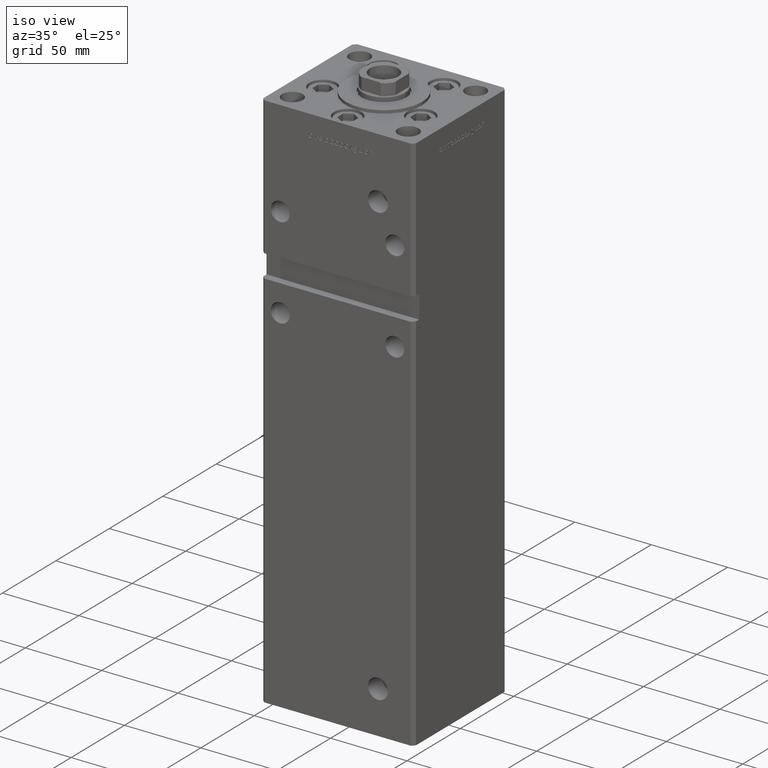
[diagram: clean part render]
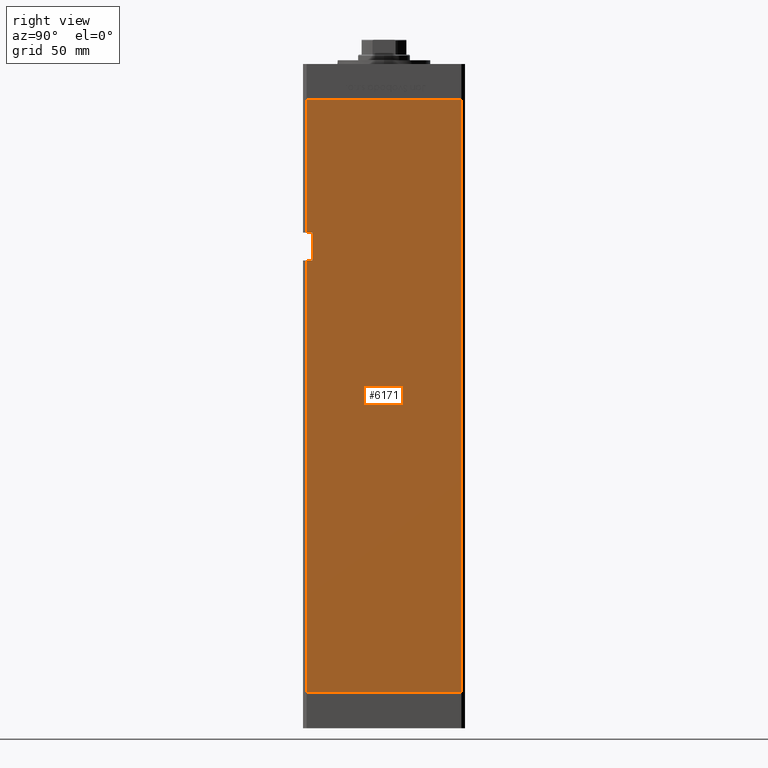
[diagram: tour spotlight — one face highlighted and labeled with its STEP entity id]
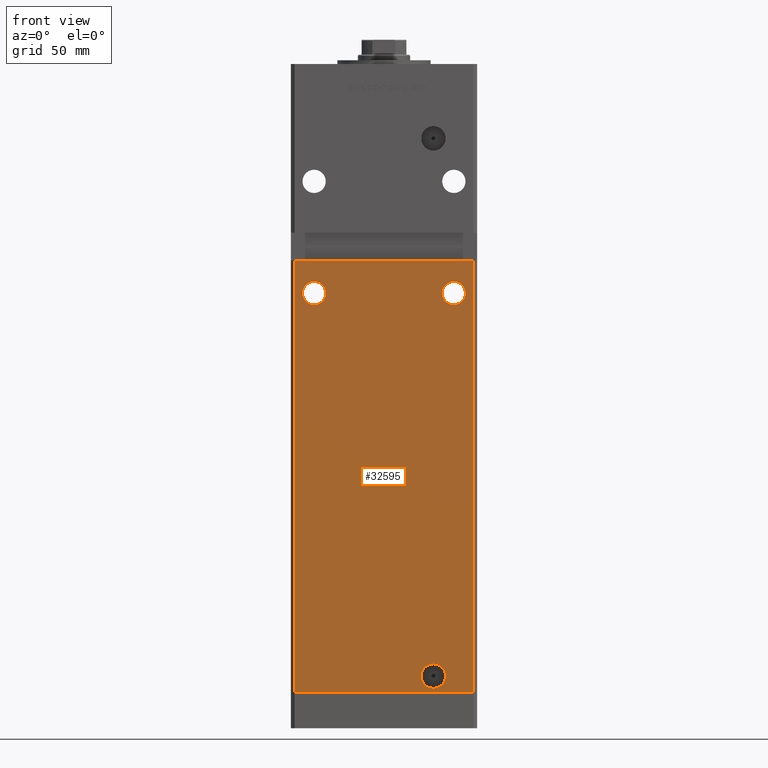
[diagram: tour spotlight — one face highlighted and labeled with its STEP entity id]
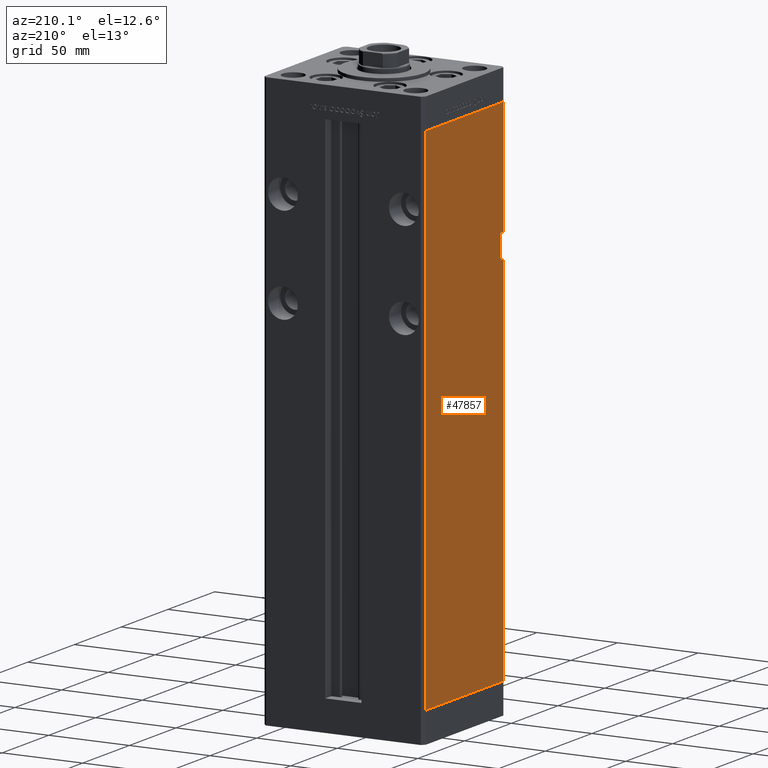
[diagram: tour spotlight — one face highlighted and labeled with its STEP entity id]
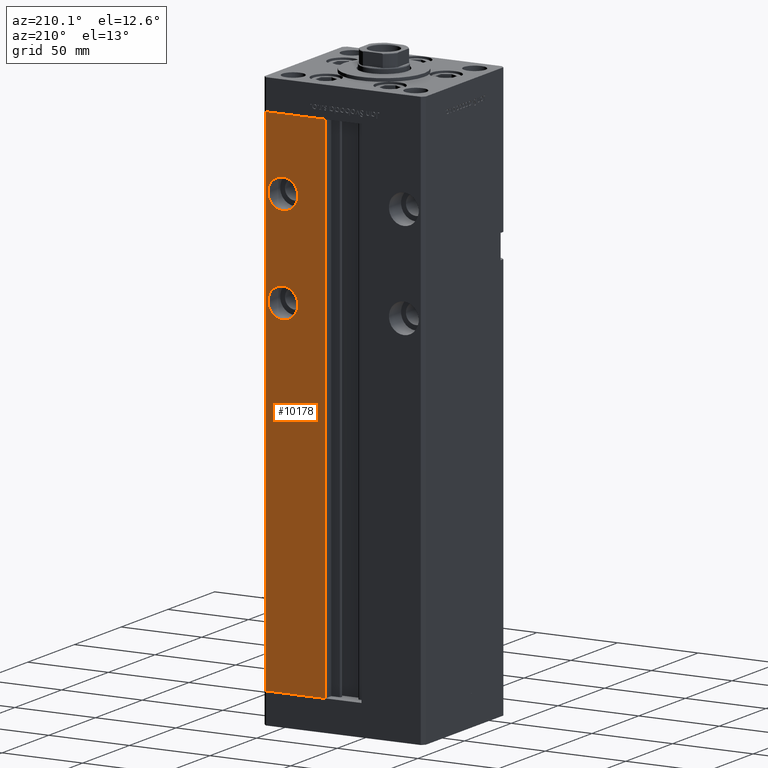
[diagram: tour spotlight — one face highlighted and labeled with its STEP entity id]
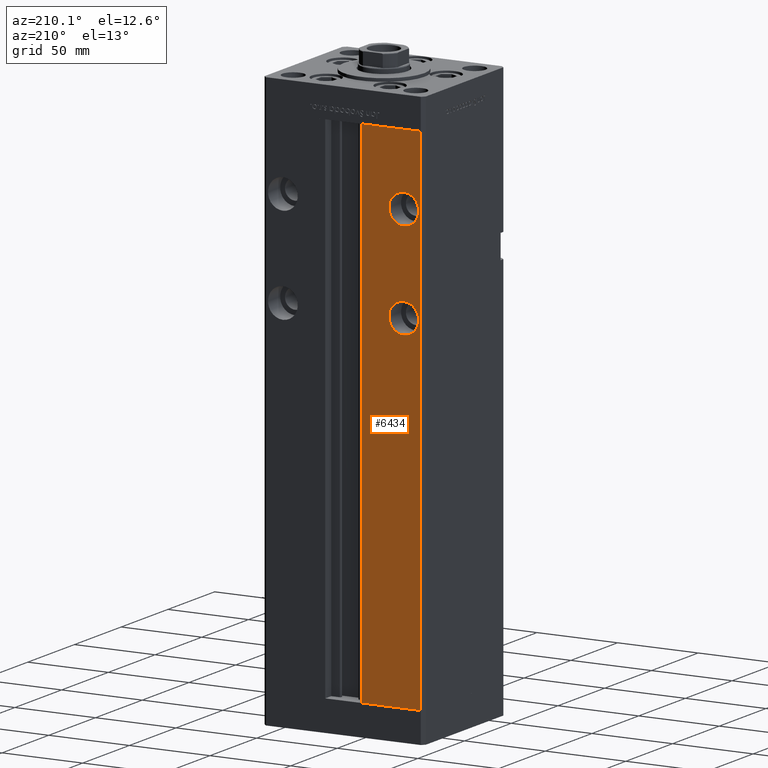
[diagram: tour spotlight — one face highlighted and labeled with its STEP entity id]
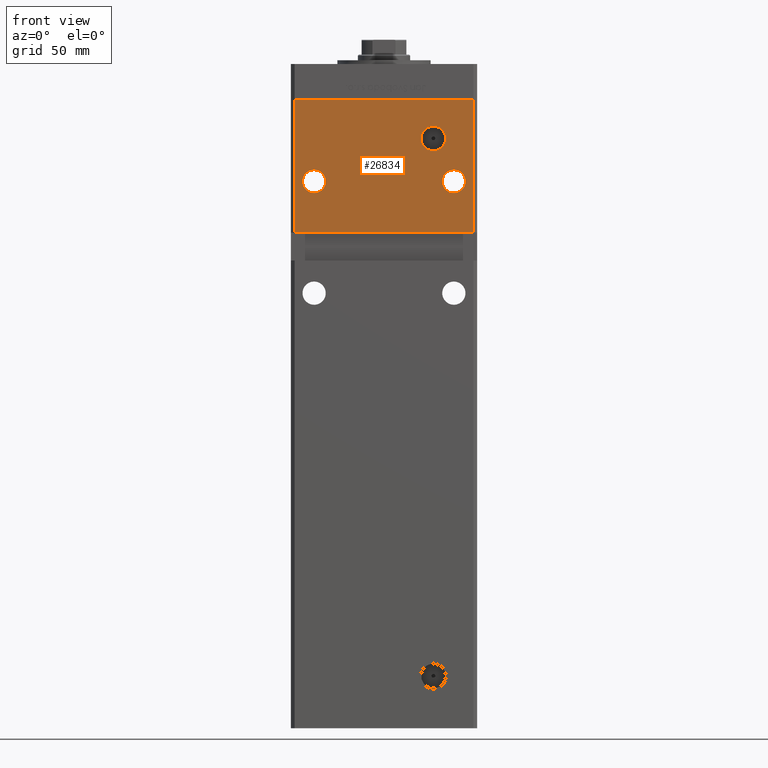
[diagram: tour spotlight — one face highlighted and labeled with its STEP entity id]
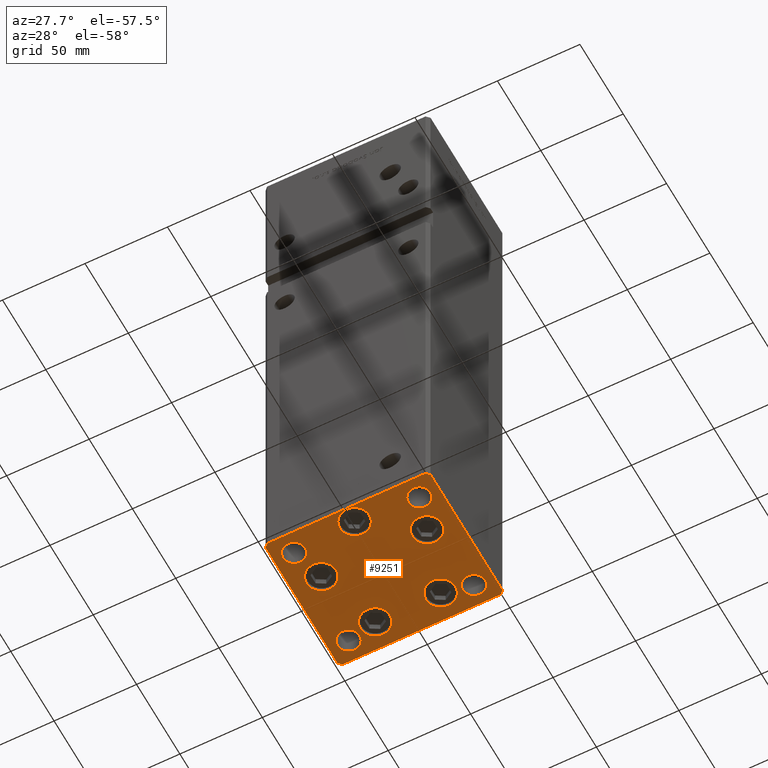
[diagram: tour spotlight — one face highlighted and labeled with its STEP entity id]
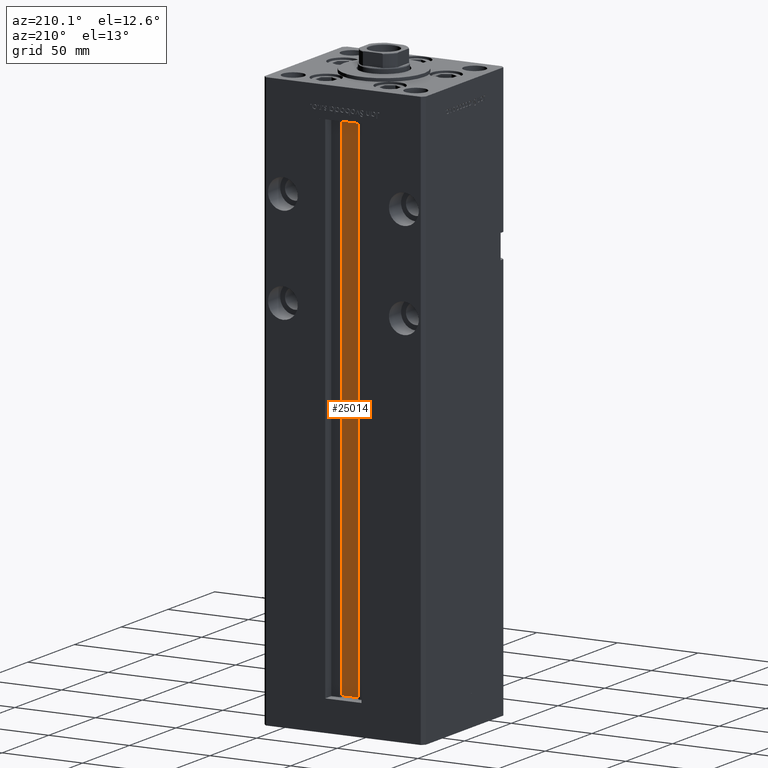
[diagram: tour spotlight — one face highlighted and labeled with its STEP entity id]
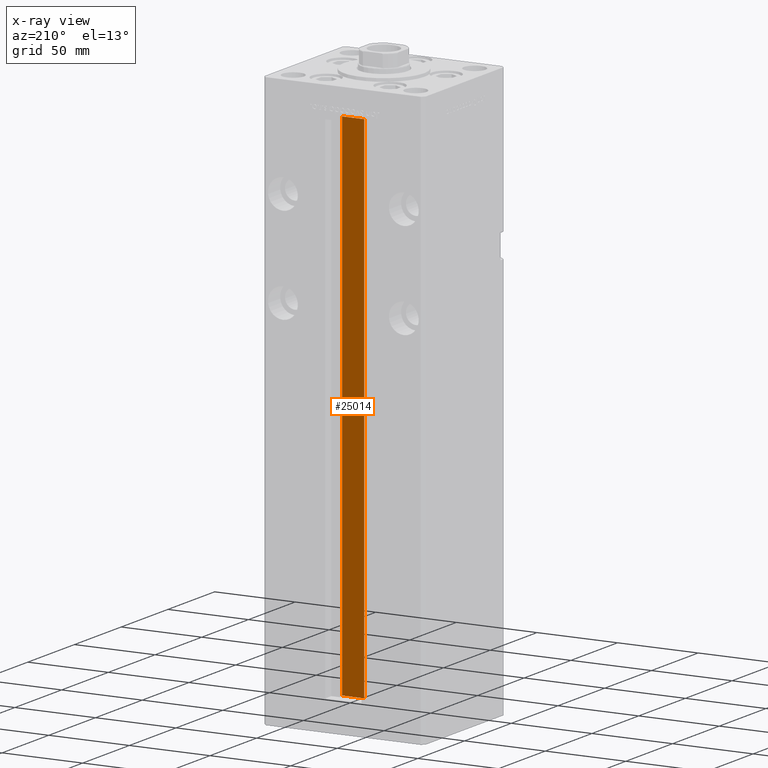
[diagram: x-ray of the same camera — body ghosted, this tour face saturated]
A machine part: a face-by-face anatomy tour. The part has 1214 B-rep faces; the first image is the clean iso view, then the 8 largest visible faces are spotlighted one at a time (largest first), each with its STEP entity span.

Face 1 — right view, entity #6171. In plain terms, the highlighted planar face has unit normal (1, -0, 0).
Definition (entity closure, byte-faithful):
#290 = LINE ( 'NONE', #49203, #46723 ) ;
#941 = CARTESIAN_POINT ( 'NONE',  ( 50.00000000000001421, 41.49999999999999289, 0.000000000000000000 ) ) ;
#1406 = VERTEX_POINT ( 'NONE', #45582 ) ;
#1578 = CARTESIAN_POINT ( 'NONE',  ( 49.99999999999998579, -41.49999999999999289, 318.5000000000000000 ) ) ;
#2298 = CARTESIAN_POINT ( 'NONE',  ( 49.99999999999998579, -41.49999999999999289, 0.000000000000000000 ) ) ;
#3964 = LINE ( 'NONE', #25150, #21880 ) ;
#5211 = CARTESIAN_POINT ( 'NONE',  ( 50.00000000000001421, 41.49999999999999289, 0.000000000000000000 ) ) ;
#5829 = VERTEX_POINT ( 'NONE', #7246 ) ;
#6141 = FACE_OUTER_BOUND ( 'NONE', #25647, .T. ) ;
#6171 = ADVANCED_FACE ( 'NONE', ( #6141 ), #47244, .T. ) ;
#7246 = CARTESIAN_POINT ( 'NONE',  ( 50.00000000000001421, 41.49999999999999289, 318.5000000000000000 ) ) ;
#7411 = ORIENTED_EDGE ( 'NONE', *, *, #12860, .T. ) ;
#7584 = ORIENTED_EDGE ( 'NONE', *, *, #25638, .F. ) ;
#8098 = EDGE_CURVE ( 'NONE', #5829, #15671, #47171, .T. ) ;
#10014 = CARTESIAN_POINT ( 'NONE',  ( 49.99999999999998579, -41.49999999999999289, 318.5000000000000000 ) ) ;
#10420 = DIRECTION ( 'NONE',  ( 3.344045254895050480E-16, 1.000000000000000000, 0.000000000000000000 ) ) ;
#10557 = VECTOR ( 'NONE', #31570, 1000.000000000000000 ) ;
#12148 = AXIS2_PLACEMENT_3D ( 'NONE', #26279, #38107, #10420 ) ;
#12860 = EDGE_CURVE ( 'NONE', #5829, #22811, #290, .T. ) ;
#13557 = CARTESIAN_POINT ( 'NONE',  ( 49.99999999999998579, -41.49999999999999289, 231.9999999999999716 ) ) ;
#13714 = VERTEX_POINT ( 'NONE', #49606 ) ;
#13759 = LINE ( 'NONE', #10014, #17578 ) ;
#14051 = ORIENTED_EDGE ( 'NONE', *, *, #8098, .F. ) ;
#14149 = EDGE_CURVE ( 'NONE', #22811, #1406, #13759, .T. ) ;
#15671 = VERTEX_POINT ( 'NONE', #5211 ) ;
#17168 = EDGE_CURVE ( 'NONE', #22669, #49229, #41637, .T. ) ;
#17576 = DIRECTION ( 'NONE',  ( -3.344045254895050973E-16, -1.000000000000000000, 0.000000000000000000 ) ) ;
#17578 = VECTOR ( 'NONE', #38235, 1000.000000000000000 ) ;
#19211 = VERTEX_POINT ( 'NONE', #34066 ) ;
#19277 = VECTOR ( 'NONE', #53009, 1000.000000000000000 ) ;
#21880 = VECTOR ( 'NONE', #52866, 1000.000000000000000 ) ;
#22669 = VERTEX_POINT ( 'NONE', #13557 ) ;
#22811 = VERTEX_POINT ( 'NONE', #36378 ) ;
#25150 = CARTESIAN_POINT ( 'NONE',  ( 49.99999999999998579, -38.50000000000000000, 231.9999999999999716 ) ) ;
#25254 = ORIENTED_EDGE ( 'NONE', *, *, #14149, .T. ) ;
#25396 = VECTOR ( 'NONE', #29799, 1000.000000000000000 ) ;
#25638 = EDGE_CURVE ( 'NONE', #15671, #49229, #42600, .T. ) ;
#25647 = EDGE_LOOP ( 'NONE', ( #51126, #38894, #7584, #14051, #7411, #25254, #28073, #40451 ) ) ;
#26279 = CARTESIAN_POINT ( 'NONE',  ( 50.00000000000001421, 41.49999999999999289, 318.5000000000000000 ) ) ;
#28073 = ORIENTED_EDGE ( 'NONE', *, *, #38008, .F. ) ;
#28295 = LINE ( 'NONE', #28565, #42401 ) ;
#28565 = CARTESIAN_POINT ( 'NONE',  ( 49.99999999999998579, -38.50000000000000000, 247.0000000000000000 ) ) ;
#29799 = DIRECTION ( 'NONE',  ( -0.000000000000000000, -0.000000000000000000, -1.000000000000000000 ) ) ;
#31570 = DIRECTION ( 'NONE',  ( -0.000000000000000000, -0.000000000000000000, -1.000000000000000000 ) ) ;
#34066 = CARTESIAN_POINT ( 'NONE',  ( 49.99999999999998579, -38.50000000000000000, 247.0000000000000000 ) ) ;
#35176 = EDGE_CURVE ( 'NONE', #13714, #19211, #28295, .T. ) ;
#35346 = CARTESIAN_POINT ( 'NONE',  ( 50.00000000000001421, 41.49999999999999289, 318.5000000000000000 ) ) ;
#36378 = CARTESIAN_POINT ( 'NONE',  ( 49.99999999999998579, -41.49999999999999289, 318.5000000000000000 ) ) ;
#36616 = LINE ( 'NONE', #47980, #19277 ) ;
#36845 = DIRECTION ( 'NONE',  ( -3.344045254895050973E-16, -1.000000000000000000, 0.000000000000000000 ) ) ;
#38008 = EDGE_CURVE ( 'NONE', #19211, #1406, #36616, .T. ) ;
#38107 = DIRECTION ( 'NONE',  ( 1.000000000000000000, -3.344045254895050480E-16, 0.000000000000000000 ) ) ;
#38235 = DIRECTION ( 'NONE',  ( -0.000000000000000000, -0.000000000000000000, -1.000000000000000000 ) ) ;
#38894 = ORIENTED_EDGE ( 'NONE', *, *, #17168, .T. ) ;
#40451 = ORIENTED_EDGE ( 'NONE', *, *, #35176, .F. ) ;
#41637 = LINE ( 'NONE', #1578, #25396 ) ;
#42401 = VECTOR ( 'NONE', #49260, 1000.000000000000000 ) ;
#42600 = LINE ( 'NONE', #941, #51560 ) ;
#43777 = EDGE_CURVE ( 'NONE', #13714, #22669, #3964, .T. ) ;
#45582 = CARTESIAN_POINT ( 'NONE',  ( 49.99999999999998579, -41.49999999999999289, 247.0000000000000000 ) ) ;
#46723 = VECTOR ( 'NONE', #36845, 1000.000000000000000 ) ;
#47171 = LINE ( 'NONE', #35346, #10557 ) ;
#47244 = PLANE ( 'NONE',  #12148 ) ;
#47980 = CARTESIAN_POINT ( 'NONE',  ( 49.99999999999998579, -38.50000000000000000, 247.0000000000000000 ) ) ;
#49203 = CARTESIAN_POINT ( 'NONE',  ( 50.00000000000001421, 41.49999999999999289, 318.5000000000000000 ) ) ;
#49229 = VERTEX_POINT ( 'NONE', #2298 ) ;
#49260 = DIRECTION ( 'NONE',  ( -0.000000000000000000, -0.000000000000000000, 1.000000000000000000 ) ) ;
#49606 = CARTESIAN_POINT ( 'NONE',  ( 49.99999999999998579, -38.49999999999999289, 231.9999999999999716 ) ) ;
#51126 = ORIENTED_EDGE ( 'NONE', *, *, #43777, .T. ) ;
#51560 = VECTOR ( 'NONE', #17576, 1000.000000000000000 ) ;
#52866 = DIRECTION ( 'NONE',  ( -0.000000000000000000, -1.000000000000000000, -0.000000000000000000 ) ) ;
#53009 = DIRECTION ( 'NONE',  ( -0.000000000000000000, -1.000000000000000000, -0.000000000000000000 ) ) ;

Face 2 — front view, entity #32595. In plain terms, the highlighted planar face has unit normal (0, 1, 0).
Definition (entity closure, byte-faithful):
#151 = CARTESIAN_POINT ( 'NONE',  ( 26.49999999999998934, -43.50000000000000000, 2.420000000000013252 ) ) ;
#1445 = CARTESIAN_POINT ( 'NONE',  ( 37.50000000000000000, -43.50000000000000000, 208.2500000000000000 ) ) ;
#2832 = DIRECTION ( 'NONE',  ( 0.000000000000000000, 0.000000000000000000, 1.000000000000000000 ) ) ;
#2940 = CARTESIAN_POINT ( 'NONE',  ( -47.99999999999998579, -43.50000000000000000, 231.9999999999999716 ) ) ;
#3049 = LINE ( 'NONE', #36086, #45997 ) ;
#3304 = EDGE_LOOP ( 'NONE', ( #23159, #40858 ) ) ;
#3486 = CARTESIAN_POINT ( 'NONE',  ( -47.99999999999998579, -43.50000000000000000, 318.5000000000000000 ) ) ;
#4568 = VERTEX_POINT ( 'NONE', #22417 ) ;
#5551 = EDGE_LOOP ( 'NONE', ( #39290, #40855 ) ) ;
#5651 = CIRCLE ( 'NONE', #51115, 6.250000000000005329 ) ;
#6798 = EDGE_LOOP ( 'NONE', ( #32579, #23535, #49704, #51257 ) ) ;
#6986 = ORIENTED_EDGE ( 'NONE', *, *, #15436, .T. ) ;
#7424 = EDGE_CURVE ( 'NONE', #4568, #47685, #47032, .T. ) ;
#8611 = CARTESIAN_POINT ( 'NONE',  ( 26.49999999999998934, -43.50000000000000000, 15.58000000000000362 ) ) ;
#9551 = AXIS2_PLACEMENT_3D ( 'NONE', #36410, #27799, #44489 ) ;
#9991 = CARTESIAN_POINT ( 'NONE',  ( -47.99999999999998579, -43.50000000000000000, 318.5000000000000000 ) ) ;
#10721 = VERTEX_POINT ( 'NONE', #38738 ) ;
#11396 = DIRECTION ( 'NONE',  ( 0.000000000000000000, 1.000000000000000000, 0.000000000000000000 ) ) ;
#11521 = FACE_OUTER_BOUND ( 'NONE', #6798, .T. ) ;
#12856 = VERTEX_POINT ( 'NONE', #8611 ) ;
#14583 = DIRECTION ( 'NONE',  ( 0.000000000000000000, 1.000000000000000000, 0.000000000000000000 ) ) ;
#14848 = AXIS2_PLACEMENT_3D ( 'NONE', #3486, #48095, #48360 ) ;
#14855 = LINE ( 'NONE', #47926, #19401 ) ;
#15090 = DIRECTION ( 'NONE',  ( 0.000000000000000000, 1.000000000000000000, 0.000000000000000000 ) ) ;
#15436 = EDGE_CURVE ( 'NONE', #16727, #31063, #5651, .T. ) ;
#15771 = EDGE_CURVE ( 'NONE', #31969, #41107, #23623, .T. ) ;
#15810 = FACE_BOUND ( 'NONE', #37796, .T. ) ;
#16727 = VERTEX_POINT ( 'NONE', #1445 ) ;
#16788 = EDGE_CURVE ( 'NONE', #10721, #47685, #3049, .T. ) ;
#18021 = LINE ( 'NONE', #9991, #25929 ) ;
#18635 = VERTEX_POINT ( 'NONE', #151 ) ;
#18696 = CIRCLE ( 'NONE', #20385, 6.579999999999994742 ) ;
#19401 = VECTOR ( 'NONE', #48181, 1000.000000000000000 ) ;
#19926 = VECTOR ( 'NONE', #46498, 1000.000000000000000 ) ;
#19971 = DIRECTION ( 'NONE',  ( 0.000000000000000000, -1.000000000000000000, 0.000000000000000000 ) ) ;
#20385 = AXIS2_PLACEMENT_3D ( 'NONE', #24022, #19971, #20506 ) ;
#20499 = CARTESIAN_POINT ( 'NONE',  ( 37.50000000000000000, -43.50000000000000000, 214.5000000000000000 ) ) ;
#20506 = DIRECTION ( 'NONE',  ( 0.000000000000000000, 0.000000000000000000, -1.000000000000000000 ) ) ;
#22417 = CARTESIAN_POINT ( 'NONE',  ( 47.99999999999998579, -43.50000000000000000, 231.9999999999999716 ) ) ;
#22953 = CARTESIAN_POINT ( 'NONE',  ( 47.99999999999998579, -43.50000000000000000, 0.000000000000000000 ) ) ;
#23159 = ORIENTED_EDGE ( 'NONE', *, *, #15771, .T. ) ;
#23535 = ORIENTED_EDGE ( 'NONE', *, *, #45420, .F. ) ;
#23623 = CIRCLE ( 'NONE', #34789, 6.250000000000005329 ) ;
#24022 = CARTESIAN_POINT ( 'NONE',  ( 26.49999999999998934, -43.50000000000000000, 9.000000000000007105 ) ) ;
#25080 = DIRECTION ( 'NONE',  ( 0.000000000000000000, 0.000000000000000000, 1.000000000000000000 ) ) ;
#25929 = VECTOR ( 'NONE', #34440, 1000.000000000000000 ) ;
#26681 = DIRECTION ( 'NONE',  ( 0.000000000000000000, 0.000000000000000000, 1.000000000000000000 ) ) ;
#27459 = CARTESIAN_POINT ( 'NONE',  ( -37.50000000000000000, -43.50000000000000000, 214.5000000000000000 ) ) ;
#27799 = DIRECTION ( 'NONE',  ( 0.000000000000000000, -1.000000000000000000, 0.000000000000000000 ) ) ;
#28519 = CARTESIAN_POINT ( 'NONE',  ( -37.50000000000000000, -43.50000000000000000, 208.2500000000000000 ) ) ;
#28587 = EDGE_CURVE ( 'NONE', #12856, #18635, #39613, .T. ) ;
#31023 = EDGE_CURVE ( 'NONE', #47874, #10721, #18021, .T. ) ;
#31063 = VERTEX_POINT ( 'NONE', #40604 ) ;
#31500 = DIRECTION ( 'NONE',  ( 0.000000000000000000, 0.000000000000000000, 1.000000000000000000 ) ) ;
#31826 = CARTESIAN_POINT ( 'NONE',  ( 37.50000000000000000, -43.50000000000000000, 214.5000000000000000 ) ) ;
#31969 = VERTEX_POINT ( 'NONE', #36654 ) ;
#32358 = EDGE_CURVE ( 'NONE', #41107, #31969, #39762, .T. ) ;
#32473 = FACE_BOUND ( 'NONE', #3304, .T. ) ;
#32579 = ORIENTED_EDGE ( 'NONE', *, *, #7424, .F. ) ;
#32595 = ADVANCED_FACE ( 'NONE', ( #32473, #15810, #48887, #11521 ), #36260, .F. ) ;
#33404 = DIRECTION ( 'NONE',  ( 0.000000000000000000, 1.000000000000000000, 0.000000000000000000 ) ) ;
#33713 = AXIS2_PLACEMENT_3D ( 'NONE', #27459, #15090, #31500 ) ;
#34395 = CARTESIAN_POINT ( 'NONE',  ( 47.99999999999998579, -43.50000000000000000, 318.5000000000000000 ) ) ;
#34440 = DIRECTION ( 'NONE',  ( -0.000000000000000000, -0.000000000000000000, -1.000000000000000000 ) ) ;
#34789 = AXIS2_PLACEMENT_3D ( 'NONE', #47394, #14583, #26681 ) ;
#36086 = CARTESIAN_POINT ( 'NONE',  ( -47.99999999999998579, -43.50000000000000000, 0.000000000000000000 ) ) ;
#36260 = PLANE ( 'NONE',  #14848 ) ;
#36410 = CARTESIAN_POINT ( 'NONE',  ( 26.49999999999998934, -43.50000000000000000, 9.000000000000007105 ) ) ;
#36654 = CARTESIAN_POINT ( 'NONE',  ( -37.50000000000000000, -43.50000000000000000, 220.7500000000000000 ) ) ;
#36793 = ORIENTED_EDGE ( 'NONE', *, *, #49480, .T. ) ;
#37796 = EDGE_LOOP ( 'NONE', ( #36793, #6986 ) ) ;
#38738 = CARTESIAN_POINT ( 'NONE',  ( -47.99999999999998579, -43.50000000000000000, 0.000000000000000000 ) ) ;
#39290 = ORIENTED_EDGE ( 'NONE', *, *, #50208, .F. ) ;
#39613 = CIRCLE ( 'NONE', #9551, 6.579999999999994742 ) ;
#39762 = CIRCLE ( 'NONE', #33713, 6.250000000000005329 ) ;
#40604 = CARTESIAN_POINT ( 'NONE',  ( 37.50000000000000000, -43.50000000000000000, 220.7500000000000000 ) ) ;
#40855 = ORIENTED_EDGE ( 'NONE', *, *, #28587, .F. ) ;
#40858 = ORIENTED_EDGE ( 'NONE', *, *, #32358, .T. ) ;
#41107 = VERTEX_POINT ( 'NONE', #28519 ) ;
#41857 = AXIS2_PLACEMENT_3D ( 'NONE', #20499, #33404, #25080 ) ;
#43564 = CIRCLE ( 'NONE', #41857, 6.250000000000005329 ) ;
#44489 = DIRECTION ( 'NONE',  ( 0.000000000000000000, 0.000000000000000000, -1.000000000000000000 ) ) ;
#45420 = EDGE_CURVE ( 'NONE', #47874, #4568, #14855, .T. ) ;
#45997 = VECTOR ( 'NONE', #52484, 1000.000000000000000 ) ;
#46498 = DIRECTION ( 'NONE',  ( -0.000000000000000000, -0.000000000000000000, -1.000000000000000000 ) ) ;
#47032 = LINE ( 'NONE', #34395, #19926 ) ;
#47394 = CARTESIAN_POINT ( 'NONE',  ( -37.50000000000000000, -43.50000000000000000, 214.5000000000000000 ) ) ;
#47685 = VERTEX_POINT ( 'NONE', #22953 ) ;
#47874 = VERTEX_POINT ( 'NONE', #2940 ) ;
#47926 = CARTESIAN_POINT ( 'NONE',  ( -49.99999999999998579, -43.50000000000000000, 231.9999999999999716 ) ) ;
#48095 = DIRECTION ( 'NONE',  ( 0.000000000000000000, 1.000000000000000000, 0.000000000000000000 ) ) ;
#48181 = DIRECTION ( 'NONE',  ( 1.000000000000000000, 0.000000000000000000, 0.000000000000000000 ) ) ;
#48360 = DIRECTION ( 'NONE',  ( 0.000000000000000000, -0.000000000000000000, 1.000000000000000000 ) ) ;
#48887 = FACE_BOUND ( 'NONE', #5551, .T. ) ;
#49480 = EDGE_CURVE ( 'NONE', #31063, #16727, #43564, .T. ) ;
#49704 = ORIENTED_EDGE ( 'NONE', *, *, #31023, .T. ) ;
#50208 = EDGE_CURVE ( 'NONE', #18635, #12856, #18696, .T. ) ;
#51115 = AXIS2_PLACEMENT_3D ( 'NONE', #31826, #11396, #2832 ) ;
#51257 = ORIENTED_EDGE ( 'NONE', *, *, #16788, .T. ) ;
#52484 = DIRECTION ( 'NONE',  ( 1.000000000000000000, 0.000000000000000000, 0.000000000000000000 ) ) ;

Face 3 — auxiliary view, entity #47857. In plain terms, the highlighted planar face has unit normal (1, 0, 0).
Definition (entity closure, byte-faithful):
#1317 = CARTESIAN_POINT ( 'NONE',  ( -49.99999999999998579, -41.49999999999999289, 318.5000000000000000 ) ) ;
#2055 = EDGE_LOOP ( 'NONE', ( #15151, #4372, #27649, #49471, #11277, #47933, #15197, #46731 ) ) ;
#3339 = LINE ( 'NONE', #40947, #42954 ) ;
#4372 = ORIENTED_EDGE ( 'NONE', *, *, #20633, .F. ) ;
#4772 = CARTESIAN_POINT ( 'NONE',  ( -49.99999999999998579, -38.50000000000000000, 231.9999999999999716 ) ) ;
#4887 = CARTESIAN_POINT ( 'NONE',  ( -49.99999999999998579, -41.49999999999999289, 318.5000000000000000 ) ) ;
#4945 = VERTEX_POINT ( 'NONE', #41684 ) ;
#7071 = VERTEX_POINT ( 'NONE', #21822 ) ;
#7401 = VECTOR ( 'NONE', #40885, 1000.000000000000000 ) ;
#8350 = CARTESIAN_POINT ( 'NONE',  ( -50.00000000000001421, 41.49999999999999289, 318.5000000000000000 ) ) ;
#10107 = EDGE_CURVE ( 'NONE', #15315, #33229, #26038, .T. ) ;
#11277 = ORIENTED_EDGE ( 'NONE', *, *, #45909, .F. ) ;
#13089 = LINE ( 'NONE', #20616, #52732 ) ;
#15151 = ORIENTED_EDGE ( 'NONE', *, *, #48208, .F. ) ;
#15197 = ORIENTED_EDGE ( 'NONE', *, *, #18062, .T. ) ;
#15315 = VERTEX_POINT ( 'NONE', #16016 ) ;
#16016 = CARTESIAN_POINT ( 'NONE',  ( -50.00000000000001421, 41.49999999999999289, 318.5000000000000000 ) ) ;
#18062 = EDGE_CURVE ( 'NONE', #15315, #37890, #44393, .T. ) ;
#19032 = DIRECTION ( 'NONE',  ( -3.344045254895050480E-16, 1.000000000000000000, 0.000000000000000000 ) ) ;
#19345 = LINE ( 'NONE', #4772, #24466 ) ;
#19947 = DIRECTION ( 'NONE',  ( -0.000000000000000000, -1.000000000000000000, -0.000000000000000000 ) ) ;
#20616 = CARTESIAN_POINT ( 'NONE',  ( -49.99999999999998579, -38.50000000000000000, 247.0000000000000000 ) ) ;
#20633 = EDGE_CURVE ( 'NONE', #4945, #33495, #19345, .T. ) ;
#21822 = CARTESIAN_POINT ( 'NONE',  ( -49.99999999999998579, -41.49999999999999289, 0.000000000000000000 ) ) ;
#22907 = VECTOR ( 'NONE', #52580, 1000.000000000000000 ) ;
#24070 = CARTESIAN_POINT ( 'NONE',  ( -49.99999999999998579, -41.49999999999999289, 318.5000000000000000 ) ) ;
#24466 = VECTOR ( 'NONE', #49908, 1000.000000000000000 ) ;
#24904 = EDGE_CURVE ( 'NONE', #34549, #46719, #3339, .T. ) ;
#25508 = LINE ( 'NONE', #1317, #47741 ) ;
#26038 = LINE ( 'NONE', #33838, #44055 ) ;
#27649 = ORIENTED_EDGE ( 'NONE', *, *, #40709, .F. ) ;
#33229 = VERTEX_POINT ( 'NONE', #4887 ) ;
#33495 = VERTEX_POINT ( 'NONE', #41619 ) ;
#33838 = CARTESIAN_POINT ( 'NONE',  ( -50.00000000000001421, 41.49999999999999289, 318.5000000000000000 ) ) ;
#34549 = VERTEX_POINT ( 'NONE', #45943 ) ;
#37890 = VERTEX_POINT ( 'NONE', #46118 ) ;
#39492 = CARTESIAN_POINT ( 'NONE',  ( -50.00000000000001421, 41.49999999999999289, 318.5000000000000000 ) ) ;
#40709 = EDGE_CURVE ( 'NONE', #34549, #4945, #13089, .T. ) ;
#40885 = DIRECTION ( 'NONE',  ( -0.000000000000000000, -0.000000000000000000, -1.000000000000000000 ) ) ;
#40947 = CARTESIAN_POINT ( 'NONE',  ( -49.99999999999998579, -38.50000000000000000, 247.0000000000000000 ) ) ;
#41290 = CARTESIAN_POINT ( 'NONE',  ( -50.00000000000001421, 41.49999999999999289, 0.000000000000000000 ) ) ;
#41619 = CARTESIAN_POINT ( 'NONE',  ( -49.99999999999998579, -41.49999999999999289, 231.9999999999999716 ) ) ;
#41684 = CARTESIAN_POINT ( 'NONE',  ( -49.99999999999998579, -38.50000000000000000, 231.9999999999999716 ) ) ;
#42669 = AXIS2_PLACEMENT_3D ( 'NONE', #39492, #43791, #19032 ) ;
#42954 = VECTOR ( 'NONE', #19947, 1000.000000000000000 ) ;
#43791 = DIRECTION ( 'NONE',  ( 1.000000000000000000, 3.344045254895050480E-16, -0.000000000000000000 ) ) ;
#43994 = LINE ( 'NONE', #24070, #22907 ) ;
#44055 = VECTOR ( 'NONE', #50515, 1000.000000000000000 ) ;
#44393 = LINE ( 'NONE', #8350, #7401 ) ;
#44813 = DIRECTION ( 'NONE',  ( 3.344045254895050973E-16, -1.000000000000000000, 0.000000000000000000 ) ) ;
#45040 = EDGE_CURVE ( 'NONE', #37890, #7071, #52875, .T. ) ;
#45909 = EDGE_CURVE ( 'NONE', #33229, #46719, #25508, .T. ) ;
#45943 = CARTESIAN_POINT ( 'NONE',  ( -49.99999999999998579, -38.50000000000000000, 247.0000000000000000 ) ) ;
#46118 = CARTESIAN_POINT ( 'NONE',  ( -50.00000000000001421, 41.49999999999999289, 0.000000000000000000 ) ) ;
#46719 = VERTEX_POINT ( 'NONE', #48130 ) ;
#46731 = ORIENTED_EDGE ( 'NONE', *, *, #45040, .T. ) ;
#47741 = VECTOR ( 'NONE', #50506, 1000.000000000000000 ) ;
#47857 = ADVANCED_FACE ( 'NONE', ( #51058 ), #51601, .F. ) ;
#47933 = ORIENTED_EDGE ( 'NONE', *, *, #10107, .F. ) ;
#48130 = CARTESIAN_POINT ( 'NONE',  ( -49.99999999999998579, -41.49999999999999289, 247.0000000000000000 ) ) ;
#48208 = EDGE_CURVE ( 'NONE', #33495, #7071, #43994, .T. ) ;
#48585 = VECTOR ( 'NONE', #44813, 1000.000000000000000 ) ;
#49471 = ORIENTED_EDGE ( 'NONE', *, *, #24904, .T. ) ;
#49908 = DIRECTION ( 'NONE',  ( -0.000000000000000000, -1.000000000000000000, -0.000000000000000000 ) ) ;
#49940 = DIRECTION ( 'NONE',  ( 0.000000000000000000, 0.000000000000000000, -1.000000000000000000 ) ) ;
#50506 = DIRECTION ( 'NONE',  ( -0.000000000000000000, -0.000000000000000000, -1.000000000000000000 ) ) ;
#50515 = DIRECTION ( 'NONE',  ( 3.344045254895050973E-16, -1.000000000000000000, 0.000000000000000000 ) ) ;
#51058 = FACE_OUTER_BOUND ( 'NONE', #2055, .T. ) ;
#51601 = PLANE ( 'NONE',  #42669 ) ;
#52580 = DIRECTION ( 'NONE',  ( -0.000000000000000000, -0.000000000000000000, -1.000000000000000000 ) ) ;
#52732 = VECTOR ( 'NONE', #49940, 1000.000000000000000 ) ;
#52875 = LINE ( 'NONE', #41290, #48585 ) ;

Face 4 — auxiliary view, entity #10178. In plain terms, the highlighted planar face has unit normal (0, -1, 0).
Definition (entity closure, byte-faithful):
#86 = EDGE_LOOP ( 'NONE', ( #17266, #33261 ) ) ;
#2448 = VERTEX_POINT ( 'NONE', #46013 ) ;
#2973 = VECTOR ( 'NONE', #20751, 1000.000000000000000 ) ;
#3899 = CARTESIAN_POINT ( 'NONE',  ( 37.50000000000000000, 43.50000000000000000, 274.4999999999999432 ) ) ;
#4224 = EDGE_CURVE ( 'NONE', #2448, #50178, #52510, .T. ) ;
#4690 = DIRECTION ( 'NONE',  ( 0.000000000000000000, 0.000000000000000000, 1.000000000000000000 ) ) ;
#4768 = CIRCLE ( 'NONE', #16734, 9.249999999999980460 ) ;
#6640 = FACE_OUTER_BOUND ( 'NONE', #11494, .T. ) ;
#6822 = DIRECTION ( 'NONE',  ( 0.000000000000000000, 1.000000000000000000, -0.000000000000000000 ) ) ;
#6972 = DIRECTION ( 'NONE',  ( -1.000000000000000000, 0.000000000000000000, 0.000000000000000000 ) ) ;
#7026 = CARTESIAN_POINT ( 'NONE',  ( 37.50000000000000000, 43.50000000000000000, 214.5000000000000000 ) ) ;
#7207 = ORIENTED_EDGE ( 'NONE', *, *, #43902, .T. ) ;
#8935 = AXIS2_PLACEMENT_3D ( 'NONE', #10843, #6822, #23201 ) ;
#9467 = CARTESIAN_POINT ( 'NONE',  ( 48.00000000000000711, 43.50000000000000000, 318.5000000000000000 ) ) ;
#10178 = ADVANCED_FACE ( 'NONE', ( #31068, #47476, #6640 ), #47746, .F. ) ;
#10843 = CARTESIAN_POINT ( 'NONE',  ( 37.50000000000000000, 43.50000000000000000, 214.5000000000000000 ) ) ;
#11494 = EDGE_LOOP ( 'NONE', ( #14598, #31783, #7207, #49906 ) ) ;
#11814 = EDGE_CURVE ( 'NONE', #24893, #2448, #36775, .T. ) ;
#12212 = EDGE_CURVE ( 'NONE', #49990, #44832, #43291, .T. ) ;
#13486 = CARTESIAN_POINT ( 'NONE',  ( 48.00000000000000711, 43.50000000000000000, 318.5000000000000000 ) ) ;
#14598 = ORIENTED_EDGE ( 'NONE', *, *, #11814, .T. ) ;
#15065 = VECTOR ( 'NONE', #21373, 1000.000000000000000 ) ;
#15403 = DIRECTION ( 'NONE',  ( -0.000000000000000000, -0.000000000000000000, 1.000000000000000000 ) ) ;
#15486 = EDGE_CURVE ( 'NONE', #44129, #23455, #4768, .T. ) ;
#15956 = DIRECTION ( 'NONE',  ( 0.000000000000000000, 1.000000000000000000, 0.000000000000000000 ) ) ;
#16734 = AXIS2_PLACEMENT_3D ( 'NONE', #3899, #15956, #4690 ) ;
#17266 = ORIENTED_EDGE ( 'NONE', *, *, #21357, .F. ) ;
#18107 = VECTOR ( 'NONE', #15403, 1000.000000000000000 ) ;
#18145 = ORIENTED_EDGE ( 'NONE', *, *, #15486, .F. ) ;
#20028 = AXIS2_PLACEMENT_3D ( 'NONE', #42182, #23009, #39412 ) ;
#20751 = DIRECTION ( 'NONE',  ( -0.000000000000000000, -0.000000000000000000, -1.000000000000000000 ) ) ;
#21357 = EDGE_CURVE ( 'NONE', #44832, #49990, #46838, .T. ) ;
#21373 = DIRECTION ( 'NONE',  ( 1.000000000000000000, 0.000000000000000000, 0.000000000000000000 ) ) ;
#21633 = CARTESIAN_POINT ( 'NONE',  ( -11.24999999999999645, 43.50000000000000000, 318.5000000000000000 ) ) ;
#22973 = DIRECTION ( 'NONE',  ( 0.000000000000000000, 0.000000000000000000, 1.000000000000000000 ) ) ;
#23009 = DIRECTION ( 'NONE',  ( 0.000000000000000000, -1.000000000000000000, 0.000000000000000000 ) ) ;
#23201 = DIRECTION ( 'NONE',  ( 0.000000000000000000, 0.000000000000000000, -1.000000000000000000 ) ) ;
#23411 = DIRECTION ( 'NONE',  ( 0.000000000000000000, 1.000000000000000000, -0.000000000000000000 ) ) ;
#23455 = VERTEX_POINT ( 'NONE', #24645 ) ;
#24101 = CARTESIAN_POINT ( 'NONE',  ( 37.50000000000000000, 43.50000000000000000, 223.7500000000000000 ) ) ;
#24540 = AXIS2_PLACEMENT_3D ( 'NONE', #7026, #23411, #35781 ) ;
#24645 = CARTESIAN_POINT ( 'NONE',  ( 37.50000000000000000, 43.50000000000000000, 283.7499999999999432 ) ) ;
#24893 = VERTEX_POINT ( 'NONE', #40152 ) ;
#25064 = LINE ( 'NONE', #9467, #2973 ) ;
#27267 = DIRECTION ( 'NONE',  ( 0.000000000000000000, 1.000000000000000000, 0.000000000000000000 ) ) ;
#31068 = FACE_BOUND ( 'NONE', #86, .T. ) ;
#31783 = ORIENTED_EDGE ( 'NONE', *, *, #4224, .T. ) ;
#33152 = CARTESIAN_POINT ( 'NONE',  ( 37.50000000000000000, 43.50000000000000000, 265.2500000000000000 ) ) ;
#33261 = ORIENTED_EDGE ( 'NONE', *, *, #12212, .F. ) ;
#33738 = LINE ( 'NONE', #21633, #15065 ) ;
#35781 = DIRECTION ( 'NONE',  ( 0.000000000000000000, 0.000000000000000000, -1.000000000000000000 ) ) ;
#36775 = LINE ( 'NONE', #52650, #45009 ) ;
#36877 = EDGE_CURVE ( 'NONE', #23455, #44129, #45877, .T. ) ;
#38831 = CARTESIAN_POINT ( 'NONE',  ( 37.50000000000000000, 43.50000000000000000, 274.4999999999999432 ) ) ;
#39412 = DIRECTION ( 'NONE',  ( 0.000000000000000000, -0.000000000000000000, -1.000000000000000000 ) ) ;
#40152 = CARTESIAN_POINT ( 'NONE',  ( 48.00000000000000711, 43.50000000000000000, 0.000000000000000000 ) ) ;
#40193 = EDGE_CURVE ( 'NONE', #41993, #24893, #25064, .T. ) ;
#40968 = CARTESIAN_POINT ( 'NONE',  ( 11.24999999999998934, 43.50000000000000000, 318.5000000000000000 ) ) ;
#41689 = EDGE_LOOP ( 'NONE', ( #53145, #18145 ) ) ;
#41993 = VERTEX_POINT ( 'NONE', #13486 ) ;
#42182 = CARTESIAN_POINT ( 'NONE',  ( -11.24999999999999645, 43.50000000000000000, 318.5000000000000000 ) ) ;
#43291 = CIRCLE ( 'NONE', #8935, 9.250000000000008882 ) ;
#43902 = EDGE_CURVE ( 'NONE', #50178, #41993, #33738, .T. ) ;
#44129 = VERTEX_POINT ( 'NONE', #33152 ) ;
#44832 = VERTEX_POINT ( 'NONE', #24101 ) ;
#45009 = VECTOR ( 'NONE', #6972, 1000.000000000000000 ) ;
#45877 = CIRCLE ( 'NONE', #51905, 9.249999999999980460 ) ;
#46013 = CARTESIAN_POINT ( 'NONE',  ( 11.24999999999999645, 43.50000000000000000, 0.000000000000000000 ) ) ;
#46838 = CIRCLE ( 'NONE', #24540, 9.250000000000008882 ) ;
#47476 = FACE_BOUND ( 'NONE', #41689, .T. ) ;
#47711 = CARTESIAN_POINT ( 'NONE',  ( 37.50000000000000000, 43.50000000000000000, 205.2500000000000000 ) ) ;
#47746 = PLANE ( 'NONE',  #20028 ) ;
#49906 = ORIENTED_EDGE ( 'NONE', *, *, #40193, .T. ) ;
#49990 = VERTEX_POINT ( 'NONE', #47711 ) ;
#50178 = VERTEX_POINT ( 'NONE', #40968 ) ;
#51905 = AXIS2_PLACEMENT_3D ( 'NONE', #38831, #27267, #22973 ) ;
#52007 = CARTESIAN_POINT ( 'NONE',  ( 11.24999999999999645, 43.50000000000000000, 0.000000000000000000 ) ) ;
#52510 = LINE ( 'NONE', #52007, #18107 ) ;
#52650 = CARTESIAN_POINT ( 'NONE',  ( -11.24999999999999645, 43.50000000000000000, 0.000000000000000000 ) ) ;
#53145 = ORIENTED_EDGE ( 'NONE', *, *, #36877, .F. ) ;

Face 5 — auxiliary view, entity #6434. In plain terms, the highlighted planar face has unit normal (0, -1, 0).
Definition (entity closure, byte-faithful):
#891 = EDGE_LOOP ( 'NONE', ( #3604, #37694 ) ) ;
#1047 = AXIS2_PLACEMENT_3D ( 'NONE', #12158, #49253, #37686 ) ;
#2768 = DIRECTION ( 'NONE',  ( 0.000000000000000000, 1.000000000000000000, -0.000000000000000000 ) ) ;
#3604 = ORIENTED_EDGE ( 'NONE', *, *, #41044, .F. ) ;
#3669 = CARTESIAN_POINT ( 'NONE',  ( -48.00000000000000711, 43.50000000000000000, 318.5000000000000000 ) ) ;
#5510 = EDGE_CURVE ( 'NONE', #29197, #36328, #26138, .T. ) ;
#6007 = CARTESIAN_POINT ( 'NONE',  ( -11.24999999999999645, 43.50000000000000000, 0.000000000000000000 ) ) ;
#6027 = DIRECTION ( 'NONE',  ( 0.000000000000000000, 0.000000000000000000, 1.000000000000000000 ) ) ;
#6434 = ADVANCED_FACE ( 'NONE', ( #12249, #48829, #24874 ), #45322, .F. ) ;
#6606 = CARTESIAN_POINT ( 'NONE',  ( -37.50000000000000000, 43.50000000000000000, 223.7500000000000000 ) ) ;
#6804 = DIRECTION ( 'NONE',  ( -1.000000000000000000, 0.000000000000000000, 0.000000000000000000 ) ) ;
#7994 = CARTESIAN_POINT ( 'NONE',  ( -11.24999999999999645, 43.50000000000000000, 0.000000000000000000 ) ) ;
#11905 = EDGE_CURVE ( 'NONE', #29197, #48099, #44058, .T. ) ;
#12158 = CARTESIAN_POINT ( 'NONE',  ( -37.50000000000000000, 43.50000000000000000, 274.4999999999999432 ) ) ;
#12249 = FACE_BOUND ( 'NONE', #891, .T. ) ;
#12539 = ORIENTED_EDGE ( 'NONE', *, *, #46256, .F. ) ;
#13033 = DIRECTION ( 'NONE',  ( 0.000000000000000000, -0.000000000000000000, -1.000000000000000000 ) ) ;
#13877 = CARTESIAN_POINT ( 'NONE',  ( -37.50000000000000000, 43.50000000000000000, 283.7499999999999432 ) ) ;
#14028 = CARTESIAN_POINT ( 'NONE',  ( -37.50000000000000000, 43.50000000000000000, 274.4999999999999432 ) ) ;
#14834 = DIRECTION ( 'NONE',  ( 0.000000000000000000, 0.000000000000000000, -1.000000000000000000 ) ) ;
#14904 = DIRECTION ( 'NONE',  ( 0.000000000000000000, 0.000000000000000000, 1.000000000000000000 ) ) ;
#15978 = VECTOR ( 'NONE', #51047, 1000.000000000000000 ) ;
#17053 = EDGE_CURVE ( 'NONE', #39793, #48099, #40064, .T. ) ;
#19279 = CARTESIAN_POINT ( 'NONE',  ( -48.00000000000000711, 43.50000000000000000, 318.5000000000000000 ) ) ;
#19598 = CARTESIAN_POINT ( 'NONE',  ( -11.24999999999999645, 43.50000000000000000, 318.5000000000000000 ) ) ;
#21961 = AXIS2_PLACEMENT_3D ( 'NONE', #34496, #28934, #6027 ) ;
#22511 = VERTEX_POINT ( 'NONE', #13877 ) ;
#23066 = ORIENTED_EDGE ( 'NONE', *, *, #11905, .F. ) ;
#24874 = FACE_OUTER_BOUND ( 'NONE', #34414, .T. ) ;
#26072 = CARTESIAN_POINT ( 'NONE',  ( -37.50000000000000000, 43.50000000000000000, 265.2500000000000000 ) ) ;
#26138 = LINE ( 'NONE', #6007, #39634 ) ;
#26743 = DIRECTION ( 'NONE',  ( 0.000000000000000000, 1.000000000000000000, 0.000000000000000000 ) ) ;
#27017 = CARTESIAN_POINT ( 'NONE',  ( -37.50000000000000000, 43.50000000000000000, 214.5000000000000000 ) ) ;
#27104 = VERTEX_POINT ( 'NONE', #50657 ) ;
#28430 = CARTESIAN_POINT ( 'NONE',  ( -11.24999999999999645, 43.50000000000000000, 0.000000000000000000 ) ) ;
#28650 = CARTESIAN_POINT ( 'NONE',  ( -11.24999999999999645, 43.50000000000000000, 318.5000000000000000 ) ) ;
#28934 = DIRECTION ( 'NONE',  ( 0.000000000000000000, 1.000000000000000000, 0.000000000000000000 ) ) ;
#29197 = VERTEX_POINT ( 'NONE', #7994 ) ;
#29691 = CIRCLE ( 'NONE', #21961, 9.250000000000008882 ) ;
#30379 = VECTOR ( 'NONE', #44848, 1000.000000000000000 ) ;
#30535 = CIRCLE ( 'NONE', #35691, 9.250000000000008882 ) ;
#30856 = EDGE_CURVE ( 'NONE', #51731, #22511, #47408, .T. ) ;
#31086 = CARTESIAN_POINT ( 'NONE',  ( -11.24999999999999645, 43.50000000000000000, 318.5000000000000000 ) ) ;
#33081 = VERTEX_POINT ( 'NONE', #6606 ) ;
#33984 = VECTOR ( 'NONE', #36019, 1000.000000000000000 ) ;
#34414 = EDGE_LOOP ( 'NONE', ( #51841, #23066, #43391, #35344 ) ) ;
#34496 = CARTESIAN_POINT ( 'NONE',  ( -37.50000000000000000, 43.50000000000000000, 214.5000000000000000 ) ) ;
#34680 = CIRCLE ( 'NONE', #49304, 9.249999999999980460 ) ;
#35344 = ORIENTED_EDGE ( 'NONE', *, *, #47061, .F. ) ;
#35691 = AXIS2_PLACEMENT_3D ( 'NONE', #27017, #26743, #14904 ) ;
#36019 = DIRECTION ( 'NONE',  ( 1.000000000000000000, 0.000000000000000000, 0.000000000000000000 ) ) ;
#36328 = VERTEX_POINT ( 'NONE', #40892 ) ;
#37686 = DIRECTION ( 'NONE',  ( 0.000000000000000000, 0.000000000000000000, -1.000000000000000000 ) ) ;
#37694 = ORIENTED_EDGE ( 'NONE', *, *, #30856, .F. ) ;
#39634 = VECTOR ( 'NONE', #6804, 1000.000000000000000 ) ;
#39793 = VERTEX_POINT ( 'NONE', #3669 ) ;
#40064 = LINE ( 'NONE', #19598, #33984 ) ;
#40892 = CARTESIAN_POINT ( 'NONE',  ( -48.00000000000000711, 43.50000000000000000, 0.000000000000000000 ) ) ;
#41044 = EDGE_CURVE ( 'NONE', #22511, #51731, #34680, .T. ) ;
#42370 = EDGE_LOOP ( 'NONE', ( #46544, #12539 ) ) ;
#43391 = ORIENTED_EDGE ( 'NONE', *, *, #5510, .T. ) ;
#43970 = EDGE_CURVE ( 'NONE', #33081, #27104, #30535, .T. ) ;
#44058 = LINE ( 'NONE', #28430, #30379 ) ;
#44848 = DIRECTION ( 'NONE',  ( -0.000000000000000000, -0.000000000000000000, 1.000000000000000000 ) ) ;
#45322 = PLANE ( 'NONE',  #50841 ) ;
#46256 = EDGE_CURVE ( 'NONE', #27104, #33081, #29691, .T. ) ;
#46544 = ORIENTED_EDGE ( 'NONE', *, *, #43970, .F. ) ;
#47061 = EDGE_CURVE ( 'NONE', #39793, #36328, #51588, .T. ) ;
#47408 = CIRCLE ( 'NONE', #1047, 9.249999999999980460 ) ;
#48099 = VERTEX_POINT ( 'NONE', #31086 ) ;
#48829 = FACE_BOUND ( 'NONE', #42370, .T. ) ;
#49253 = DIRECTION ( 'NONE',  ( 0.000000000000000000, 1.000000000000000000, -0.000000000000000000 ) ) ;
#49304 = AXIS2_PLACEMENT_3D ( 'NONE', #14028, #2768, #14834 ) ;
#49618 = DIRECTION ( 'NONE',  ( 0.000000000000000000, -1.000000000000000000, 0.000000000000000000 ) ) ;
#50657 = CARTESIAN_POINT ( 'NONE',  ( -37.50000000000000000, 43.50000000000000000, 205.2500000000000000 ) ) ;
#50841 = AXIS2_PLACEMENT_3D ( 'NONE', #28650, #49618, #13033 ) ;
#51047 = DIRECTION ( 'NONE',  ( -0.000000000000000000, -0.000000000000000000, -1.000000000000000000 ) ) ;
#51588 = LINE ( 'NONE', #19279, #15978 ) ;
#51731 = VERTEX_POINT ( 'NONE', #26072 ) ;
#51841 = ORIENTED_EDGE ( 'NONE', *, *, #17053, .T. ) ;

Face 6 — front view, entity #26834. In plain terms, the highlighted planar face has unit normal (0, 1, 0).
Definition (entity closure, byte-faithful):
#25 = CARTESIAN_POINT ( 'NONE',  ( 37.50000000000000000, -43.50000000000000000, 268.2500000000000000 ) ) ;
#753 = CARTESIAN_POINT ( 'NONE',  ( 47.99999999999998579, -43.50000000000000000, 247.0000000000000000 ) ) ;
#1793 = PLANE ( 'NONE',  #34374 ) ;
#2061 = VERTEX_POINT ( 'NONE', #7204 ) ;
#2438 = ORIENTED_EDGE ( 'NONE', *, *, #37341, .F. ) ;
#2883 = DIRECTION ( 'NONE',  ( 0.000000000000000000, 1.000000000000000000, 0.000000000000000000 ) ) ;
#3301 = CARTESIAN_POINT ( 'NONE',  ( 26.49999999999995381, -43.50000000000000000, 290.9200000000000159 ) ) ;
#3915 = ORIENTED_EDGE ( 'NONE', *, *, #11303, .T. ) ;
#3982 = VERTEX_POINT ( 'NONE', #37755 ) ;
#4799 = CARTESIAN_POINT ( 'NONE',  ( 37.50000000000000000, -43.50000000000000000, 280.7499999999999432 ) ) ;
#5498 = DIRECTION ( 'NONE',  ( 0.000000000000000000, 0.000000000000000000, -1.000000000000000000 ) ) ;
#6123 = DIRECTION ( 'NONE',  ( 0.000000000000000000, 0.000000000000000000, 1.000000000000000000 ) ) ;
#6206 = AXIS2_PLACEMENT_3D ( 'NONE', #26978, #22672, #5498 ) ;
#6394 = CARTESIAN_POINT ( 'NONE',  ( -37.50000000000000000, -43.50000000000000000, 274.4999999999999432 ) ) ;
#7070 = CARTESIAN_POINT ( 'NONE',  ( 37.50000000000000000, -43.50000000000000000, 274.4999999999999432 ) ) ;
#7204 = CARTESIAN_POINT ( 'NONE',  ( -47.99999999999998579, -43.50000000000000000, 247.0000000000000000 ) ) ;
#8474 = CARTESIAN_POINT ( 'NONE',  ( -49.99999999999998579, -43.50000000000000000, 247.0000000000000000 ) ) ;
#8643 = CARTESIAN_POINT ( 'NONE',  ( -47.99999999999998579, -43.50000000000000000, 318.5000000000000000 ) ) ;
#9050 = CIRCLE ( 'NONE', #39104, 6.249999999999977796 ) ;
#9323 = CARTESIAN_POINT ( 'NONE',  ( -47.99999999999998579, -43.50000000000000000, 318.5000000000000000 ) ) ;
#9530 = EDGE_CURVE ( 'NONE', #37129, #3982, #52646, .T. ) ;
#9791 = DIRECTION ( 'NONE',  ( 0.000000000000000000, 1.000000000000000000, 0.000000000000000000 ) ) ;
#11303 = EDGE_CURVE ( 'NONE', #16894, #2061, #27825, .T. ) ;
#11563 = CARTESIAN_POINT ( 'NONE',  ( -47.99999999999998579, -43.50000000000000000, 318.5000000000000000 ) ) ;
#11769 = ORIENTED_EDGE ( 'NONE', *, *, #40030, .T. ) ;
#12863 = VERTEX_POINT ( 'NONE', #25 ) ;
#13397 = VERTEX_POINT ( 'NONE', #753 ) ;
#13610 = FACE_BOUND ( 'NONE', #24307, .T. ) ;
#13719 = ORIENTED_EDGE ( 'NONE', *, *, #16752, .T. ) ;
#15787 = AXIS2_PLACEMENT_3D ( 'NONE', #35011, #51142, #38757 ) ;
#15898 = VERTEX_POINT ( 'NONE', #40379 ) ;
#16417 = DIRECTION ( 'NONE',  ( -0.000000000000000000, -0.000000000000000000, -1.000000000000000000 ) ) ;
#16752 = EDGE_CURVE ( 'NONE', #36684, #12863, #27960, .T. ) ;
#16894 = VERTEX_POINT ( 'NONE', #8643 ) ;
#17321 = ORIENTED_EDGE ( 'NONE', *, *, #39844, .T. ) ;
#17362 = FACE_BOUND ( 'NONE', #29670, .T. ) ;
#18816 = ORIENTED_EDGE ( 'NONE', *, *, #25570, .F. ) ;
#19948 = CARTESIAN_POINT ( 'NONE',  ( 26.49999999999995381, -43.50000000000000000, 297.5000000000000000 ) ) ;
#20075 = CIRCLE ( 'NONE', #15787, 6.249999999999977796 ) ;
#20970 = VECTOR ( 'NONE', #16417, 1000.000000000000000 ) ;
#21401 = DIRECTION ( 'NONE',  ( 0.000000000000000000, 1.000000000000000000, 0.000000000000000000 ) ) ;
#21920 = VERTEX_POINT ( 'NONE', #24794 ) ;
#22672 = DIRECTION ( 'NONE',  ( -0.000000000000000000, 1.000000000000000000, -0.000000000000000000 ) ) ;
#24205 = ORIENTED_EDGE ( 'NONE', *, *, #40274, .T. ) ;
#24307 = EDGE_LOOP ( 'NONE', ( #13719, #17321 ) ) ;
#24483 = AXIS2_PLACEMENT_3D ( 'NONE', #19948, #36114, #36649 ) ;
#24600 = DIRECTION ( 'NONE',  ( -1.000000000000000000, -0.000000000000000000, -0.000000000000000000 ) ) ;
#24715 = DIRECTION ( 'NONE',  ( 1.000000000000000000, 0.000000000000000000, 0.000000000000000000 ) ) ;
#24794 = CARTESIAN_POINT ( 'NONE',  ( 47.99999999999998579, -43.50000000000000000, 318.5000000000000000 ) ) ;
#25436 = VECTOR ( 'NONE', #24715, 1000.000000000000000 ) ;
#25570 = EDGE_CURVE ( 'NONE', #13397, #2061, #33186, .T. ) ;
#25713 = FACE_OUTER_BOUND ( 'NONE', #38720, .T. ) ;
#25915 = CARTESIAN_POINT ( 'NONE',  ( 37.50000000000000000, -43.50000000000000000, 274.4999999999999432 ) ) ;
#26182 = DIRECTION ( 'NONE',  ( 0.000000000000000000, 0.000000000000000000, 1.000000000000000000 ) ) ;
#26834 = ADVANCED_FACE ( 'NONE', ( #13610, #17362, #25713, #46145 ), #1793, .F. ) ;
#26978 = CARTESIAN_POINT ( 'NONE',  ( 26.49999999999995381, -43.50000000000000000, 297.5000000000000000 ) ) ;
#27825 = LINE ( 'NONE', #35913, #29489 ) ;
#27960 = CIRCLE ( 'NONE', #29688, 6.249999999999977796 ) ;
#29489 = VECTOR ( 'NONE', #48544, 1000.000000000000000 ) ;
#29670 = EDGE_LOOP ( 'NONE', ( #32490, #24205 ) ) ;
#29688 = AXIS2_PLACEMENT_3D ( 'NONE', #7070, #43369, #35299 ) ;
#30390 = ORIENTED_EDGE ( 'NONE', *, *, #46873, .F. ) ;
#30569 = EDGE_CURVE ( 'NONE', #15898, #43174, #41406, .T. ) ;
#32490 = ORIENTED_EDGE ( 'NONE', *, *, #9530, .T. ) ;
#33186 = LINE ( 'NONE', #8474, #38634 ) ;
#34374 = AXIS2_PLACEMENT_3D ( 'NONE', #9323, #21401, #38602 ) ;
#35011 = CARTESIAN_POINT ( 'NONE',  ( -37.50000000000000000, -43.50000000000000000, 274.4999999999999432 ) ) ;
#35299 = DIRECTION ( 'NONE',  ( 0.000000000000000000, 0.000000000000000000, 1.000000000000000000 ) ) ;
#35913 = CARTESIAN_POINT ( 'NONE',  ( -47.99999999999998579, -43.50000000000000000, 318.5000000000000000 ) ) ;
#36114 = DIRECTION ( 'NONE',  ( -0.000000000000000000, 1.000000000000000000, -0.000000000000000000 ) ) ;
#36649 = DIRECTION ( 'NONE',  ( 0.000000000000000000, 0.000000000000000000, -1.000000000000000000 ) ) ;
#36684 = VERTEX_POINT ( 'NONE', #4799 ) ;
#36871 = LINE ( 'NONE', #49760, #20970 ) ;
#37129 = VERTEX_POINT ( 'NONE', #50879 ) ;
#37341 = EDGE_CURVE ( 'NONE', #21920, #13397, #36871, .T. ) ;
#37755 = CARTESIAN_POINT ( 'NONE',  ( -37.50000000000000000, -43.50000000000000000, 268.2500000000000000 ) ) ;
#38602 = DIRECTION ( 'NONE',  ( 0.000000000000000000, -0.000000000000000000, 1.000000000000000000 ) ) ;
#38634 = VECTOR ( 'NONE', #24600, 1000.000000000000000 ) ;
#38720 = EDGE_LOOP ( 'NONE', ( #3915, #18816, #2438, #30390 ) ) ;
#38757 = DIRECTION ( 'NONE',  ( 0.000000000000000000, 0.000000000000000000, 1.000000000000000000 ) ) ;
#39104 = AXIS2_PLACEMENT_3D ( 'NONE', #25915, #9791, #26182 ) ;
#39842 = EDGE_LOOP ( 'NONE', ( #11769, #46862 ) ) ;
#39844 = EDGE_CURVE ( 'NONE', #12863, #36684, #9050, .T. ) ;
#40030 = EDGE_CURVE ( 'NONE', #43174, #15898, #47672, .T. ) ;
#40274 = EDGE_CURVE ( 'NONE', #3982, #37129, #20075, .T. ) ;
#40379 = CARTESIAN_POINT ( 'NONE',  ( 26.49999999999995381, -43.50000000000000000, 304.0799999999999841 ) ) ;
#40867 = LINE ( 'NONE', #11563, #25436 ) ;
#41406 = CIRCLE ( 'NONE', #6206, 6.579999999999975202 ) ;
#41473 = AXIS2_PLACEMENT_3D ( 'NONE', #6394, #2883, #6123 ) ;
#43174 = VERTEX_POINT ( 'NONE', #3301 ) ;
#43369 = DIRECTION ( 'NONE',  ( 0.000000000000000000, 1.000000000000000000, 0.000000000000000000 ) ) ;
#46145 = FACE_BOUND ( 'NONE', #39842, .T. ) ;
#46862 = ORIENTED_EDGE ( 'NONE', *, *, #30569, .T. ) ;
#46873 = EDGE_CURVE ( 'NONE', #16894, #21920, #40867, .T. ) ;
#47672 = CIRCLE ( 'NONE', #24483, 6.579999999999975202 ) ;
#48544 = DIRECTION ( 'NONE',  ( -0.000000000000000000, -0.000000000000000000, -1.000000000000000000 ) ) ;
#49760 = CARTESIAN_POINT ( 'NONE',  ( 47.99999999999998579, -43.50000000000000000, 318.5000000000000000 ) ) ;
#50879 = CARTESIAN_POINT ( 'NONE',  ( -37.50000000000000000, -43.50000000000000000, 280.7499999999999432 ) ) ;
#51142 = DIRECTION ( 'NONE',  ( 0.000000000000000000, 1.000000000000000000, 0.000000000000000000 ) ) ;
#52646 = CIRCLE ( 'NONE', #41473, 6.249999999999977796 ) ;

Face 7 — auxiliary view, entity #9251. In plain terms, the highlighted planar face has unit normal (0, 0, -1).
Definition (entity closure, byte-faithful):
#49 = ORIENTED_EDGE ( 'NONE', *, *, #19964, .T. ) ;
#265 = VERTEX_POINT ( 'NONE', #1094 ) ;
#316 = LINE ( 'NONE', #37922, #10712 ) ;
#393 = CARTESIAN_POINT ( 'NONE',  ( -19.82068048781373903, 27.62499999999999645, 0.000000000000000000 ) ) ;
#504 = DIRECTION ( 'NONE',  ( 0.000000000000000000, -0.000000000000000000, -1.000000000000000000 ) ) ;
#1028 = CARTESIAN_POINT ( 'NONE',  ( -19.82068048781373903, 27.62499999999999645, 0.000000000000000000 ) ) ;
#1094 = CARTESIAN_POINT ( 'NONE',  ( -10.82068048781373903, 27.62499999999999645, 0.000000000000000000 ) ) ;
#1179 = ORIENTED_EDGE ( 'NONE', *, *, #40264, .T. ) ;
#1180 = CARTESIAN_POINT ( 'NONE',  ( -37.99999999999999289, -31.50000000000000000, 0.000000000000000000 ) ) ;
#1428 = CARTESIAN_POINT ( 'NONE',  ( 38.00000000000000000, 31.49999999999999289, 0.000000000000000000 ) ) ;
#2397 = EDGE_LOOP ( 'NONE', ( #43895, #41925 ) ) ;
#2476 = EDGE_CURVE ( 'NONE', #39662, #18412, #29266, .T. ) ;
#2713 = AXIS2_PLACEMENT_3D ( 'NONE', #9863, #46683, #38613 ) ;
#3061 = EDGE_LOOP ( 'NONE', ( #23866, #41635 ) ) ;
#3074 = EDGE_CURVE ( 'NONE', #27040, #35505, #33555, .T. ) ;
#3481 = VERTEX_POINT ( 'NONE', #31801 ) ;
#3564 = CIRCLE ( 'NONE', #30155, 6.749999999999999112 ) ;
#3774 = DIRECTION ( 'NONE',  ( -0.000000000000000000, 0.000000000000000000, 1.000000000000000000 ) ) ;
#4114 = FACE_BOUND ( 'NONE', #3061, .T. ) ;
#4368 = FACE_BOUND ( 'NONE', #11472, .T. ) ;
#4416 = CARTESIAN_POINT ( 'NONE',  ( -48.00000000000000711, 43.49999999999996447, 0.000000000000000000 ) ) ;
#4436 = CIRCLE ( 'NONE', #17283, 9.000000000000000000 ) ;
#4644 = DIRECTION ( 'NONE',  ( 0.000000000000000000, -0.000000000000000000, -1.000000000000000000 ) ) ;
#4746 = DIRECTION ( 'NONE',  ( 1.000000000000000000, 0.000000000000000000, 0.000000000000000000 ) ) ;
#4935 = DIRECTION ( 'NONE',  ( 0.000000000000000000, -0.000000000000000000, -1.000000000000000000 ) ) ;
#5039 = CIRCLE ( 'NONE', #40208, 6.749999999999999112 ) ;
#5050 = CARTESIAN_POINT ( 'NONE',  ( -28.82068048781373548, 27.62499999999999645, 0.000000000000000000 ) ) ;
#5664 = DIRECTION ( 'NONE',  ( -0.7071067811865474617, 0.7071067811865474617, 0.000000000000000000 ) ) ;
#6318 = AXIS2_PLACEMENT_3D ( 'NONE', #15986, #48535, #52565 ) ;
#6432 = CIRCLE ( 'NONE', #26157, 6.749999999999999112 ) ;
#6471 = VERTEX_POINT ( 'NONE', #12772 ) ;
#6633 = ORIENTED_EDGE ( 'NONE', *, *, #41964, .T. ) ;
#6844 = EDGE_CURVE ( 'NONE', #33565, #36991, #16476, .T. ) ;
#6947 = VERTEX_POINT ( 'NONE', #46099 ) ;
#7560 = EDGE_LOOP ( 'NONE', ( #16686, #22185 ) ) ;
#7590 = DIRECTION ( 'NONE',  ( -0.000000000000000000, 0.000000000000000000, 1.000000000000000000 ) ) ;
#8383 = FACE_BOUND ( 'NONE', #22941, .T. ) ;
#8541 = CARTESIAN_POINT ( 'NONE',  ( -48.00000000000000711, 43.49999999999996447, 0.000000000000000000 ) ) ;
#8714 = DIRECTION ( 'NONE',  ( 0.000000000000000000, -0.000000000000000000, -1.000000000000000000 ) ) ;
#8953 = ORIENTED_EDGE ( 'NONE', *, *, #41600, .T. ) ;
#8994 = ORIENTED_EDGE ( 'NONE', *, *, #6844, .T. ) ;
#9223 = DIRECTION ( 'NONE',  ( -0.000000000000000000, 0.000000000000000000, 1.000000000000000000 ) ) ;
#9251 = ADVANCED_FACE ( 'NONE', ( #36346, #45211, #4114, #28535, #8383, #4368, #28013, #44950, #44428, #19662 ), #24766, .T. ) ;
#9586 = CIRCLE ( 'NONE', #31045, 6.749999999999999112 ) ;
#9627 = AXIS2_PLACEMENT_3D ( 'NONE', #34900, #21979, #46448 ) ;
#9863 = CARTESIAN_POINT ( 'NONE',  ( 32.05550741379015278, -11.33333333333333037, 0.000000000000000000 ) ) ;
#10042 = EDGE_LOOP ( 'NONE', ( #6633, #1179, #31446, #24317, #30876, #44378, #14662, #21762 ) ) ;
#10537 = DIRECTION ( 'NONE',  ( 1.000000000000000000, 0.000000000000000000, 0.000000000000000000 ) ) ;
#10712 = VECTOR ( 'NONE', #45463, 1000.000000000000000 ) ;
#10781 = AXIS2_PLACEMENT_3D ( 'NONE', #29172, #24619, #4746 ) ;
#10787 = AXIS2_PLACEMENT_3D ( 'NONE', #34755, #3774, #48654 ) ;
#10945 = DIRECTION ( 'NONE',  ( 1.000000000000000000, 0.000000000000000000, 0.000000000000000000 ) ) ;
#11421 = CARTESIAN_POINT ( 'NONE',  ( -50.00000000000000000, -41.50000000000000000, 0.000000000000000000 ) ) ;
#11472 = EDGE_LOOP ( 'NONE', ( #46652, #40069 ) ) ;
#12215 = ORIENTED_EDGE ( 'NONE', *, *, #28715, .T. ) ;
#12270 = VERTEX_POINT ( 'NONE', #30016 ) ;
#12772 = CARTESIAN_POINT ( 'NONE',  ( 31.25000000000000000, 31.49999999999999289, 0.000000000000000000 ) ) ;
#13231 = VERTEX_POINT ( 'NONE', #15532 ) ;
#13329 = VECTOR ( 'NONE', #10537, 1000.000000000000000 ) ;
#13552 = EDGE_CURVE ( 'NONE', #52268, #30435, #52077, .T. ) ;
#13784 = EDGE_CURVE ( 'NONE', #33708, #40788, #41580, .T. ) ;
#14256 = VECTOR ( 'NONE', #19885, 1000.000000000000000 ) ;
#14359 = EDGE_LOOP ( 'NONE', ( #16751, #12215 ) ) ;
#14584 = EDGE_CURVE ( 'NONE', #18412, #39662, #25316, .T. ) ;
#14662 = ORIENTED_EDGE ( 'NONE', *, *, #36637, .T. ) ;
#15363 = EDGE_CURVE ( 'NONE', #35145, #43454, #15907, .T. ) ;
#15532 = CARTESIAN_POINT ( 'NONE',  ( 47.99999999999999289, -43.50000000000001421, 0.000000000000000000 ) ) ;
#15614 = ORIENTED_EDGE ( 'NONE', *, *, #29576, .T. ) ;
#15708 = CIRCLE ( 'NONE', #6318, 8.999999999999998224 ) ;
#15901 = AXIS2_PLACEMENT_3D ( 'NONE', #32553, #29584, #49756 ) ;
#15907 = CIRCLE ( 'NONE', #10781, 6.749999999999999112 ) ;
#15986 = CARTESIAN_POINT ( 'NONE',  ( 19.82068048781373193, 27.62500000000000000, 0.000000000000000000 ) ) ;
#16364 = AXIS2_PLACEMENT_3D ( 'NONE', #21529, #4644, #17226 ) ;
#16476 = CIRCLE ( 'NONE', #9627, 9.000000000000000000 ) ;
#16522 = CARTESIAN_POINT ( 'NONE',  ( -32.05550741379015278, -11.33333333333333925, 0.000000000000000000 ) ) ;
#16644 = CARTESIAN_POINT ( 'NONE',  ( 28.82068048781372838, 27.62500000000000000, 0.000000000000000000 ) ) ;
#16686 = ORIENTED_EDGE ( 'NONE', *, *, #44279, .F. ) ;
#16751 = ORIENTED_EDGE ( 'NONE', *, *, #41675, .T. ) ;
#17226 = DIRECTION ( 'NONE',  ( 1.000000000000000000, 0.000000000000000000, 0.000000000000000000 ) ) ;
#17283 = AXIS2_PLACEMENT_3D ( 'NONE', #393, #8714, #32630 ) ;
#17473 = ORIENTED_EDGE ( 'NONE', *, *, #14584, .T. ) ;
#17796 = DIRECTION ( 'NONE',  ( 1.000000000000000000, 0.000000000000000000, 0.000000000000000000 ) ) ;
#17947 = CARTESIAN_POINT ( 'NONE',  ( -41.05550741379015278, -11.33333333333333925, 0.000000000000000000 ) ) ;
#18069 = EDGE_CURVE ( 'NONE', #13231, #3481, #31743, .T. ) ;
#18377 = AXIS2_PLACEMENT_3D ( 'NONE', #22693, #38292, #26723 ) ;
#18412 = VERTEX_POINT ( 'NONE', #21943 ) ;
#19255 = CARTESIAN_POINT ( 'NONE',  ( 23.05550741379014923, -11.33333333333333037, 0.000000000000000000 ) ) ;
#19600 = EDGE_LOOP ( 'NONE', ( #15614, #8953 ) ) ;
#19662 = FACE_BOUND ( 'NONE', #14359, .T. ) ;
#19885 = DIRECTION ( 'NONE',  ( 0.7071067811865463515, 0.7071067811865487940, 0.000000000000000000 ) ) ;
#19964 = EDGE_CURVE ( 'NONE', #46944, #38678, #35637, .T. ) ;
#20237 = ORIENTED_EDGE ( 'NONE', *, *, #2476, .T. ) ;
#20323 = CARTESIAN_POINT ( 'NONE',  ( -23.05550741379014923, -11.33333333333333748, 0.000000000000000000 ) ) ;
#20346 = VERTEX_POINT ( 'NONE', #35090 ) ;
#20416 = ORIENTED_EDGE ( 'NONE', *, *, #40136, .T. ) ;
#20880 = DIRECTION ( 'NONE',  ( -0.7071067811865463515, -0.7071067811865487940, 0.000000000000000000 ) ) ;
#21170 = DIRECTION ( 'NONE',  ( 1.000000000000000000, 0.000000000000000000, 0.000000000000000000 ) ) ;
#21529 = CARTESIAN_POINT ( 'NONE',  ( 38.00000000000000000, -31.49999999999999289, 0.000000000000000000 ) ) ;
#21762 = ORIENTED_EDGE ( 'NONE', *, *, #13552, .T. ) ;
#21943 = CARTESIAN_POINT ( 'NONE',  ( 31.25000000000000000, -31.49999999999999289, 0.000000000000000000 ) ) ;
#21950 = CARTESIAN_POINT ( 'NONE',  ( 41.05550741379015278, -11.33333333333332860, 0.000000000000000000 ) ) ;
#21979 = DIRECTION ( 'NONE',  ( 0.000000000000000000, -0.000000000000000000, -1.000000000000000000 ) ) ;
#22157 = VERTEX_POINT ( 'NONE', #24730 ) ;
#22185 = ORIENTED_EDGE ( 'NONE', *, *, #15363, .F. ) ;
#22284 = LINE ( 'NONE', #50797, #46143 ) ;
#22380 = ORIENTED_EDGE ( 'NONE', *, *, #22679, .T. ) ;
#22657 = DIRECTION ( 'NONE',  ( 1.000000000000000000, 0.000000000000000000, 0.000000000000000000 ) ) ;
#22671 = CIRCLE ( 'NONE', #37280, 9.000000000000000000 ) ;
#22679 = EDGE_CURVE ( 'NONE', #38678, #46944, #46032, .T. ) ;
#22693 = CARTESIAN_POINT ( 'NONE',  ( 32.05550741379015278, -11.33333333333333037, 0.000000000000000000 ) ) ;
#22707 = AXIS2_PLACEMENT_3D ( 'NONE', #1028, #504, #21170 ) ;
#22793 = CIRCLE ( 'NONE', #10787, 6.749999999999999112 ) ;
#22941 = EDGE_LOOP ( 'NONE', ( #49, #22380 ) ) ;
#23167 = CARTESIAN_POINT ( 'NONE',  ( -47.99999999999999289, -43.50000000000001421, 0.000000000000000000 ) ) ;
#23591 = CIRCLE ( 'NONE', #22707, 9.000000000000000000 ) ;
#23866 = ORIENTED_EDGE ( 'NONE', *, *, #13784, .T. ) ;
#23942 = CARTESIAN_POINT ( 'NONE',  ( 47.99999999999999289, -43.50000000000001421, 0.000000000000000000 ) ) ;
#24241 = CARTESIAN_POINT ( 'NONE',  ( 0.000000000000000000, 0.000000000000000000, 0.000000000000000000 ) ) ;
#24317 = ORIENTED_EDGE ( 'NONE', *, *, #43794, .T. ) ;
#24619 = DIRECTION ( 'NONE',  ( -0.000000000000000000, 0.000000000000000000, 1.000000000000000000 ) ) ;
#24730 = CARTESIAN_POINT ( 'NONE',  ( 49.99999999999992184, 41.49999999999998579, 0.000000000000000000 ) ) ;
#24766 = PLANE ( 'NONE',  #37170 ) ;
#25129 = DIRECTION ( 'NONE',  ( 1.000000000000000000, 0.000000000000000000, 0.000000000000000000 ) ) ;
#25316 = CIRCLE ( 'NONE', #33011, 6.749999999999999112 ) ;
#25901 = EDGE_LOOP ( 'NONE', ( #20416, #8994 ) ) ;
#26157 = AXIS2_PLACEMENT_3D ( 'NONE', #47782, #48297, #10945 ) ;
#26723 = DIRECTION ( 'NONE',  ( 1.000000000000000000, 0.000000000000000000, 0.000000000000000000 ) ) ;
#26831 = VERTEX_POINT ( 'NONE', #5050 ) ;
#27040 = VERTEX_POINT ( 'NONE', #49862 ) ;
#27511 = EDGE_CURVE ( 'NONE', #40788, #33708, #33561, .T. ) ;
#27853 = CARTESIAN_POINT ( 'NONE',  ( -50.00000000000000711, 41.49999999999995026, 0.000000000000000000 ) ) ;
#27917 = EDGE_CURVE ( 'NONE', #50302, #6471, #3564, .T. ) ;
#28013 = FACE_BOUND ( 'NONE', #43305, .T. ) ;
#28535 = FACE_BOUND ( 'NONE', #25901, .T. ) ;
#28715 = EDGE_CURVE ( 'NONE', #32239, #6947, #9586, .T. ) ;
#28722 = VECTOR ( 'NONE', #43999, 1000.000000000000000 ) ;
#28765 = VECTOR ( 'NONE', #32421, 1000.000000000000000 ) ;
#29159 = DIRECTION ( 'NONE',  ( 0.000000000000000000, -0.000000000000000000, -1.000000000000000000 ) ) ;
#29172 = CARTESIAN_POINT ( 'NONE',  ( -38.00000000000000000, 31.50000000000000000, 0.000000000000000000 ) ) ;
#29228 = LINE ( 'NONE', #8541, #38136 ) ;
#29266 = CIRCLE ( 'NONE', #16364, 6.749999999999999112 ) ;
#29438 = DIRECTION ( 'NONE',  ( 0.000000000000000000, -0.000000000000000000, -1.000000000000000000 ) ) ;
#29517 = CARTESIAN_POINT ( 'NONE',  ( 9.000000000000003553, -34.00000000000000000, 0.000000000000000000 ) ) ;
#29576 = EDGE_CURVE ( 'NONE', #26831, #265, #4436, .T. ) ;
#29584 = DIRECTION ( 'NONE',  ( 0.000000000000000000, -0.000000000000000000, -1.000000000000000000 ) ) ;
#30016 = CARTESIAN_POINT ( 'NONE',  ( -47.99999999999999289, -43.50000000000001421, 0.000000000000000000 ) ) ;
#30155 = AXIS2_PLACEMENT_3D ( 'NONE', #39370, #47436, #39626 ) ;
#30435 = VERTEX_POINT ( 'NONE', #11421 ) ;
#30458 = DIRECTION ( 'NONE',  ( 0.000000000000000000, -0.000000000000000000, -1.000000000000000000 ) ) ;
#30876 = ORIENTED_EDGE ( 'NONE', *, *, #50833, .T. ) ;
#31045 = AXIS2_PLACEMENT_3D ( 'NONE', #1180, #30458, #22657 ) ;
#31231 = CARTESIAN_POINT ( 'NONE',  ( -44.74999999999999289, -31.50000000000000000, 0.000000000000000000 ) ) ;
#31443 = CARTESIAN_POINT ( 'NONE',  ( -31.25000000000000000, 31.50000000000000000, 0.000000000000000000 ) ) ;
#31446 = ORIENTED_EDGE ( 'NONE', *, *, #18069, .T. ) ;
#31611 = CARTESIAN_POINT ( 'NONE',  ( 44.75000000000000000, -31.49999999999999289, 0.000000000000000000 ) ) ;
#31743 = LINE ( 'NONE', #23942, #14256 ) ;
#31801 = CARTESIAN_POINT ( 'NONE',  ( 50.00000000000000000, -41.49999999999999289, 0.000000000000000000 ) ) ;
#32239 = VERTEX_POINT ( 'NONE', #31231 ) ;
#32421 = DIRECTION ( 'NONE',  ( -1.003213576468515193E-15, 1.000000000000000000, 0.000000000000000000 ) ) ;
#32553 = CARTESIAN_POINT ( 'NONE',  ( -32.05550741379015278, -11.33333333333333925, 0.000000000000000000 ) ) ;
#32630 = DIRECTION ( 'NONE',  ( 1.000000000000000000, 0.000000000000000000, 0.000000000000000000 ) ) ;
#32968 = DIRECTION ( 'NONE',  ( 0.000000000000000000, -0.000000000000000000, -1.000000000000000000 ) ) ;
#33011 = AXIS2_PLACEMENT_3D ( 'NONE', #45565, #29438, #50142 ) ;
#33497 = CARTESIAN_POINT ( 'NONE',  ( 19.82068048781373193, 27.62500000000000000, 0.000000000000000000 ) ) ;
#33555 = CIRCLE ( 'NONE', #42123, 8.999999999999998224 ) ;
#33561 = CIRCLE ( 'NONE', #2713, 9.000000000000001776 ) ;
#33565 = VERTEX_POINT ( 'NONE', #29517 ) ;
#33651 = LINE ( 'NONE', #46027, #51937 ) ;
#33708 = VERTEX_POINT ( 'NONE', #19255 ) ;
#34193 = CARTESIAN_POINT ( 'NONE',  ( 4.163799117101000559E-15, -34.00000000000000000, 0.000000000000000000 ) ) ;
#34726 = EDGE_CURVE ( 'NONE', #35505, #27040, #15708, .T. ) ;
#34749 = CARTESIAN_POINT ( 'NONE',  ( 44.75000000000000000, 31.49999999999999289, 0.000000000000000000 ) ) ;
#34755 = CARTESIAN_POINT ( 'NONE',  ( -38.00000000000000000, 31.50000000000000000, 0.000000000000000000 ) ) ;
#34900 = CARTESIAN_POINT ( 'NONE',  ( 4.163799117101000559E-15, -34.00000000000000000, 0.000000000000000000 ) ) ;
#35090 = CARTESIAN_POINT ( 'NONE',  ( 47.99999999999990763, 43.50000000000000000, 0.000000000000000000 ) ) ;
#35145 = VERTEX_POINT ( 'NONE', #48201 ) ;
#35505 = VERTEX_POINT ( 'NONE', #16644 ) ;
#35637 = CIRCLE ( 'NONE', #15901, 9.000000000000001776 ) ;
#36346 = FACE_BOUND ( 'NONE', #19600, .T. ) ;
#36637 = EDGE_CURVE ( 'NONE', #50244, #52268, #29228, .T. ) ;
#36712 = CARTESIAN_POINT ( 'NONE',  ( -50.00000000000000711, 41.49999999999995026, 0.000000000000000000 ) ) ;
#36987 = LINE ( 'NONE', #49089, #28765 ) ;
#36991 = VERTEX_POINT ( 'NONE', #40427 ) ;
#37170 = AXIS2_PLACEMENT_3D ( 'NONE', #24241, #7590, #52483 ) ;
#37280 = AXIS2_PLACEMENT_3D ( 'NONE', #34193, #4935, #50072 ) ;
#37922 = CARTESIAN_POINT ( 'NONE',  ( 47.99999999999990763, 43.50000000000000000, 0.000000000000000000 ) ) ;
#38079 = EDGE_CURVE ( 'NONE', #20346, #50244, #316, .T. ) ;
#38136 = VECTOR ( 'NONE', #20880, 1000.000000000000000 ) ;
#38292 = DIRECTION ( 'NONE',  ( 0.000000000000000000, -0.000000000000000000, -1.000000000000000000 ) ) ;
#38613 = DIRECTION ( 'NONE',  ( 1.000000000000000000, 0.000000000000000000, 0.000000000000000000 ) ) ;
#38678 = VERTEX_POINT ( 'NONE', #20323 ) ;
#39176 = AXIS2_PLACEMENT_3D ( 'NONE', #16522, #29159, #25129 ) ;
#39370 = CARTESIAN_POINT ( 'NONE',  ( 38.00000000000000000, 31.49999999999999289, 0.000000000000000000 ) ) ;
#39626 = DIRECTION ( 'NONE',  ( 1.000000000000000000, 0.000000000000000000, 0.000000000000000000 ) ) ;
#39662 = VERTEX_POINT ( 'NONE', #31611 ) ;
#40069 = ORIENTED_EDGE ( 'NONE', *, *, #51378, .F. ) ;
#40136 = EDGE_CURVE ( 'NONE', #36991, #33565, #22671, .T. ) ;
#40208 = AXIS2_PLACEMENT_3D ( 'NONE', #1428, #9223, #17796 ) ;
#40264 = EDGE_CURVE ( 'NONE', #12270, #13231, #43343, .T. ) ;
#40427 = CARTESIAN_POINT ( 'NONE',  ( -8.999999999999996447, -34.00000000000000000, 0.000000000000000000 ) ) ;
#40788 = VERTEX_POINT ( 'NONE', #21950 ) ;
#41580 = CIRCLE ( 'NONE', #18377, 9.000000000000001776 ) ;
#41600 = EDGE_CURVE ( 'NONE', #265, #26831, #23591, .T. ) ;
#41635 = ORIENTED_EDGE ( 'NONE', *, *, #27511, .T. ) ;
#41675 = EDGE_CURVE ( 'NONE', #6947, #32239, #6432, .T. ) ;
#41925 = ORIENTED_EDGE ( 'NONE', *, *, #34726, .T. ) ;
#41964 = EDGE_CURVE ( 'NONE', #30435, #12270, #33651, .T. ) ;
#41999 = DIRECTION ( 'NONE',  ( 0.7071067811865474617, -0.7071067811865474617, 0.000000000000000000 ) ) ;
#42123 = AXIS2_PLACEMENT_3D ( 'NONE', #33497, #32968, #45872 ) ;
#43305 = EDGE_LOOP ( 'NONE', ( #20237, #17473 ) ) ;
#43343 = LINE ( 'NONE', #23167, #13329 ) ;
#43454 = VERTEX_POINT ( 'NONE', #31443 ) ;
#43794 = EDGE_CURVE ( 'NONE', #3481, #22157, #36987, .T. ) ;
#43895 = ORIENTED_EDGE ( 'NONE', *, *, #3074, .T. ) ;
#43999 = DIRECTION ( 'NONE',  ( 8.360113137237628665E-17, -1.000000000000000000, 0.000000000000000000 ) ) ;
#44279 = EDGE_CURVE ( 'NONE', #43454, #35145, #22793, .T. ) ;
#44378 = ORIENTED_EDGE ( 'NONE', *, *, #38079, .T. ) ;
#44428 = FACE_OUTER_BOUND ( 'NONE', #10042, .T. ) ;
#44950 = FACE_BOUND ( 'NONE', #7560, .T. ) ;
#45211 = FACE_BOUND ( 'NONE', #2397, .T. ) ;
#45463 = DIRECTION ( 'NONE',  ( -1.000000000000000000, -3.614007241618350743E-16, 0.000000000000000000 ) ) ;
#45565 = CARTESIAN_POINT ( 'NONE',  ( 38.00000000000000000, -31.49999999999999289, 0.000000000000000000 ) ) ;
#45872 = DIRECTION ( 'NONE',  ( 1.000000000000000000, 0.000000000000000000, 0.000000000000000000 ) ) ;
#46027 = CARTESIAN_POINT ( 'NONE',  ( -50.00000000000000000, -41.50000000000000000, 0.000000000000000000 ) ) ;
#46032 = CIRCLE ( 'NONE', #39176, 9.000000000000001776 ) ;
#46099 = CARTESIAN_POINT ( 'NONE',  ( -31.24999999999999289, -31.50000000000000000, 0.000000000000000000 ) ) ;
#46143 = VECTOR ( 'NONE', #5664, 1000.000000000000114 ) ;
#46448 = DIRECTION ( 'NONE',  ( 1.000000000000000000, 0.000000000000000000, 0.000000000000000000 ) ) ;
#46652 = ORIENTED_EDGE ( 'NONE', *, *, #27917, .F. ) ;
#46683 = DIRECTION ( 'NONE',  ( 0.000000000000000000, -0.000000000000000000, -1.000000000000000000 ) ) ;
#46944 = VERTEX_POINT ( 'NONE', #17947 ) ;
#47436 = DIRECTION ( 'NONE',  ( -0.000000000000000000, 0.000000000000000000, 1.000000000000000000 ) ) ;
#47782 = CARTESIAN_POINT ( 'NONE',  ( -37.99999999999999289, -31.50000000000000000, 0.000000000000000000 ) ) ;
#48201 = CARTESIAN_POINT ( 'NONE',  ( -44.75000000000000000, 31.50000000000000000, 0.000000000000000000 ) ) ;
#48297 = DIRECTION ( 'NONE',  ( 0.000000000000000000, -0.000000000000000000, -1.000000000000000000 ) ) ;
#48535 = DIRECTION ( 'NONE',  ( 0.000000000000000000, -0.000000000000000000, -1.000000000000000000 ) ) ;
#48654 = DIRECTION ( 'NONE',  ( 1.000000000000000000, 0.000000000000000000, 0.000000000000000000 ) ) ;
#49089 = CARTESIAN_POINT ( 'NONE',  ( 50.00000000000000000, -41.49999999999999289, 0.000000000000000000 ) ) ;
#49756 = DIRECTION ( 'NONE',  ( 1.000000000000000000, 0.000000000000000000, 0.000000000000000000 ) ) ;
#49862 = CARTESIAN_POINT ( 'NONE',  ( 10.82068048781373193, 27.62500000000000000, 0.000000000000000000 ) ) ;
#50072 = DIRECTION ( 'NONE',  ( 1.000000000000000000, 0.000000000000000000, 0.000000000000000000 ) ) ;
#50142 = DIRECTION ( 'NONE',  ( 1.000000000000000000, 0.000000000000000000, 0.000000000000000000 ) ) ;
#50244 = VERTEX_POINT ( 'NONE', #4416 ) ;
#50302 = VERTEX_POINT ( 'NONE', #34749 ) ;
#50797 = CARTESIAN_POINT ( 'NONE',  ( 49.99999999999992184, 41.49999999999998579, 0.000000000000000000 ) ) ;
#50833 = EDGE_CURVE ( 'NONE', #22157, #20346, #22284, .T. ) ;
#51378 = EDGE_CURVE ( 'NONE', #6471, #50302, #5039, .T. ) ;
#51937 = VECTOR ( 'NONE', #41999, 1000.000000000000114 ) ;
#52077 = LINE ( 'NONE', #36712, #28722 ) ;
#52268 = VERTEX_POINT ( 'NONE', #27853 ) ;
#52483 = DIRECTION ( 'NONE',  ( 1.000000000000000000, 0.000000000000000000, 0.000000000000000000 ) ) ;
#52565 = DIRECTION ( 'NONE',  ( 1.000000000000000000, 0.000000000000000000, 0.000000000000000000 ) ) ;

Face 8 — auxiliary view, entity #25014. An x-ray twin of the same camera follows (body ghosted, this face saturated) — the face is partly hidden behind the body. In plain terms, the highlighted planar face has unit normal (0, -1, 0).
Definition (entity closure, byte-faithful):
#1110 = ORIENTED_EDGE ( 'NONE', *, *, #21719, .T. ) ;
#1654 = DIRECTION ( 'NONE',  ( 1.000000000000000000, -0.000000000000000000, -0.000000000000000000 ) ) ;
#2196 = CARTESIAN_POINT ( 'NONE',  ( 6.876153656360465050, 32.99999999999986500, 0.000000000000000000 ) ) ;
#2932 = LINE ( 'NONE', #19284, #31375 ) ;
#3776 = EDGE_LOOP ( 'NONE', ( #21385, #14791, #1110, #30807 ) ) ;
#6046 = AXIS2_PLACEMENT_3D ( 'NONE', #13417, #46218, #9397 ) ;
#9397 = DIRECTION ( 'NONE',  ( 0.000000000000000000, 0.000000000000000000, -1.000000000000000000 ) ) ;
#9446 = LINE ( 'NONE', #2196, #42253 ) ;
#9724 = CARTESIAN_POINT ( 'NONE',  ( -6.876153656360465050, 32.99999999999986500, 0.000000000000000000 ) ) ;
#11352 = VERTEX_POINT ( 'NONE', #11703 ) ;
#11703 = CARTESIAN_POINT ( 'NONE',  ( 6.876153656360465050, 32.99999999999986500, 0.000000000000000000 ) ) ;
#11915 = EDGE_CURVE ( 'NONE', #11352, #15704, #21676, .T. ) ;
#13417 = CARTESIAN_POINT ( 'NONE',  ( 6.876153656360465050, 32.99999999999986500, 0.000000000000000000 ) ) ;
#14791 = ORIENTED_EDGE ( 'NONE', *, *, #30048, .F. ) ;
#15704 = VERTEX_POINT ( 'NONE', #22374 ) ;
#19284 = CARTESIAN_POINT ( 'NONE',  ( -6.876153656360465050, 32.99999999999986500, 0.000000000000000000 ) ) ;
#20987 = VERTEX_POINT ( 'NONE', #33700 ) ;
#21155 = CARTESIAN_POINT ( 'NONE',  ( 6.876153656360465050, 32.99999999999986500, 0.000000000000000000 ) ) ;
#21385 = ORIENTED_EDGE ( 'NONE', *, *, #11915, .F. ) ;
#21676 = LINE ( 'NONE', #21155, #51897 ) ;
#21719 = EDGE_CURVE ( 'NONE', #22011, #20987, #2932, .T. ) ;
#22011 = VERTEX_POINT ( 'NONE', #9724 ) ;
#22374 = CARTESIAN_POINT ( 'NONE',  ( 6.876153656360465050, 32.99999999999986500, 318.5000000000000000 ) ) ;
#25014 = ADVANCED_FACE ( 'NONE', ( #30885 ), #33850, .F. ) ;
#28172 = LINE ( 'NONE', #49404, #35809 ) ;
#30048 = EDGE_CURVE ( 'NONE', #22011, #11352, #9446, .T. ) ;
#30807 = ORIENTED_EDGE ( 'NONE', *, *, #48669, .F. ) ;
#30885 = FACE_OUTER_BOUND ( 'NONE', #3776, .T. ) ;
#31375 = VECTOR ( 'NONE', #52123, 1000.000000000000000 ) ;
#33700 = CARTESIAN_POINT ( 'NONE',  ( -6.876153656360465050, 32.99999999999986500, 318.5000000000000000 ) ) ;
#33850 = PLANE ( 'NONE',  #6046 ) ;
#35809 = VECTOR ( 'NONE', #45369, 1000.000000000000000 ) ;
#42253 = VECTOR ( 'NONE', #1654, 1000.000000000000000 ) ;
#45105 = DIRECTION ( 'NONE',  ( -0.000000000000000000, -0.000000000000000000, 1.000000000000000000 ) ) ;
#45369 = DIRECTION ( 'NONE',  ( -1.000000000000000000, 0.000000000000000000, 0.000000000000000000 ) ) ;
#46218 = DIRECTION ( 'NONE',  ( 0.000000000000000000, -1.000000000000000000, -0.000000000000000000 ) ) ;
#48669 = EDGE_CURVE ( 'NONE', #15704, #20987, #28172, .T. ) ;
#49404 = CARTESIAN_POINT ( 'NONE',  ( 0.000000000000000000, 32.99999999999986500, 318.5000000000000000 ) ) ;
#51897 = VECTOR ( 'NONE', #45105, 1000.000000000000000 ) ;
#52123 = DIRECTION ( 'NONE',  ( -0.000000000000000000, -0.000000000000000000, 1.000000000000000000 ) ) ;